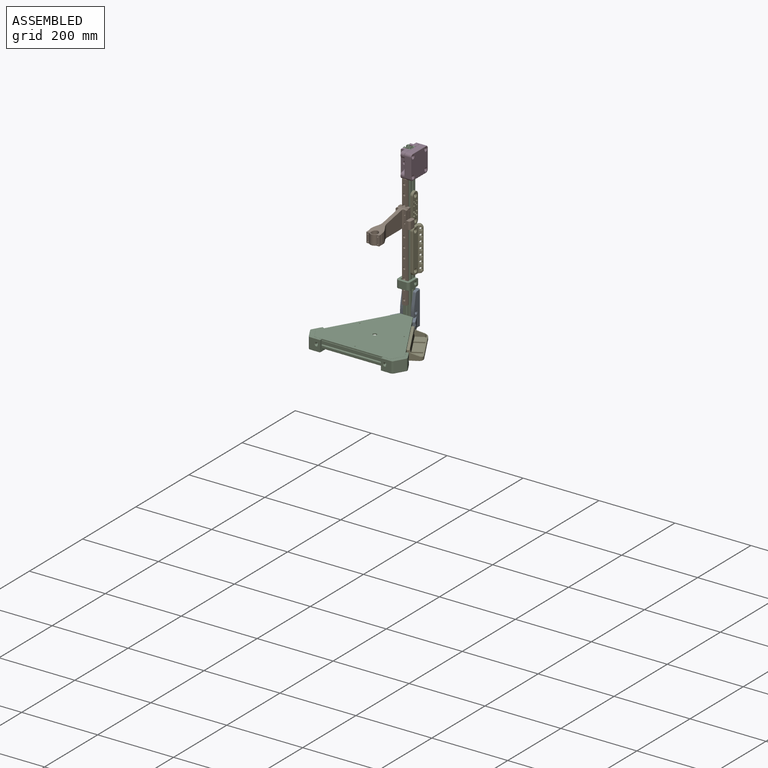
[diagram: assembled view]
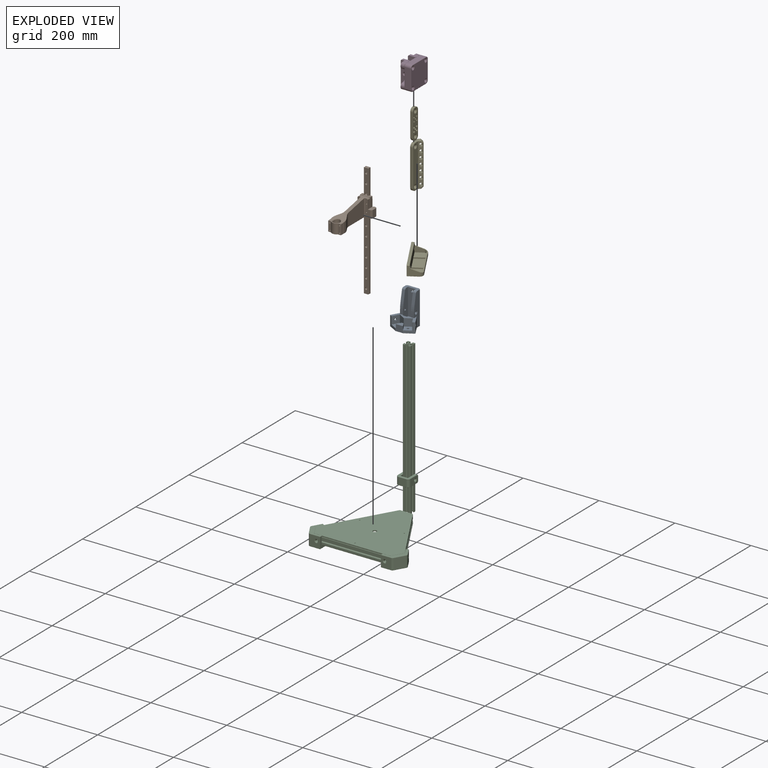
[diagram: exploded view]
GUIDED TOUR — FREECAD ASSEMBLY "HeatSetInsertPress-V2"

This assembly has 5 components, labeled P0..P4 below (a component is one placed body or linked part; the same part can appear more than once), held together by 0 modeled joints plus 7 derived contact edges. A joint is a constraint between two components; its type names the relative motion it leaves free:
  CONTACT — a derived adjacency edge — the two components touch in the source model (clearance under 2% of the assembly's diagonal); it is measured from the geometry, not a modeled constraint.
Axis/direction vectors are unit vectors and 'through' points are millimeter coordinates, both in the assembly's world frame.

MATES
  1. CONTACT "contact_0_1": P0 <-> P1, contact direction (0.000, 0.000, 1.000) through (-7.86, -10.11, 39.85) mm (derived from contact, not a modeled constraint)
  2. CONTACT "contact_0_2": P0 <-> P2, contact direction (0.000, -1.000, 0.000) through (9.89, -9.69, 10.00) mm (derived from contact, not a modeled constraint)
  3. CONTACT "contact_1_2": P1 <-> P2, contact direction (0.000, 0.000, -1.000) through (6.36, -21.40, 79.38) mm (derived from contact, not a modeled constraint)
  4. CONTACT "contact_1_3": P1 <-> P3, contact direction (0.000, 0.000, 1.000) through (7.64, -12.24, 343.00) mm (derived from contact, not a modeled constraint)
  5. CONTACT "contact_1_4": P1 <-> P4, contact direction (0.000, 0.000, -1.000) through (16.94, -11.04, 237.03) mm (derived from contact, not a modeled constraint)
  6. CONTACT "contact_2_3": P2 <-> P3, contact direction (0.000, 0.000, 1.000) through (9.48, -9.87, 410.00) mm (derived from contact, not a modeled constraint)
  7. CONTACT "contact_2_4": P2 <-> P4, contact direction (0.000, 0.000, 1.000) through (6.75, 7.21, 286.31) mm (derived from contact, not a modeled constraint)

ASSEMBLY ORDER
  1. P0 — the base component [order verified]
  2. P2 [order verified]
  3. P4 [order verified]
  4. P1 [order verified]
  5. P3 [order verified]
Order-tag legend:
  [order verified] — this step's position reverses a verified removal order: the component was checked to insert without passing through the ones already placed.

Of the 5 components, 4 carry a construction recipe — the FreeCAD feature program (sketches with constraints, then the solid features that consume them) that regenerates the part from scratch, quoted from this document or from the linked companion document it references; the rest are supplied as boundary geometry only. The tour below walks the components in assembly order: each is shown spotlighted twice — in the assembled view, then in the exploded view, where a leader line traces a displaced component back to its assembled socket (components that stay in place when exploded have no leader line; saturated green if recipe-attached, orange if geometry-only; every other component desaturated gray) — followed by its recipe or geometry summary and the mates that hold it.
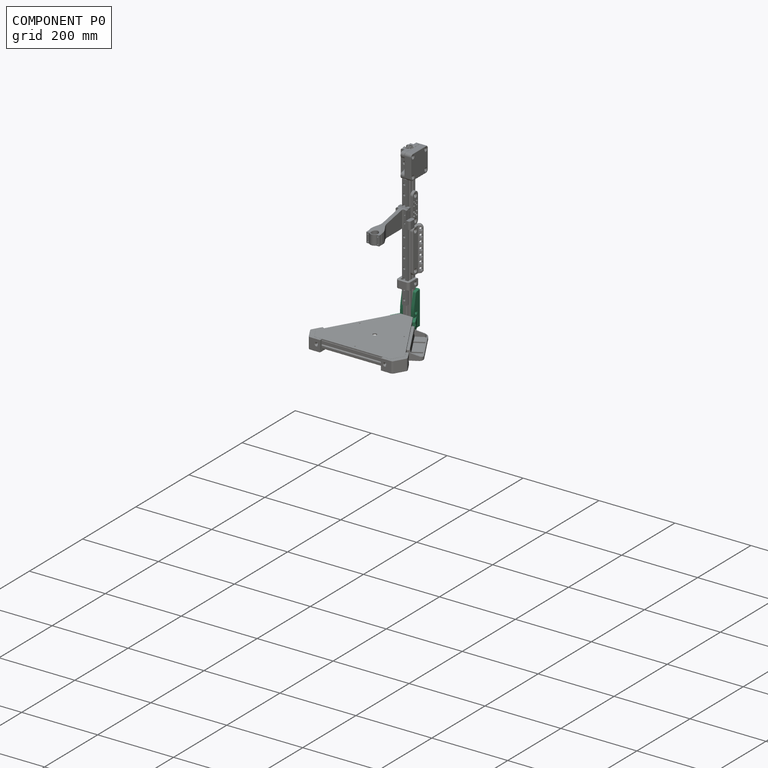
[diagram: component P0 — assembled]
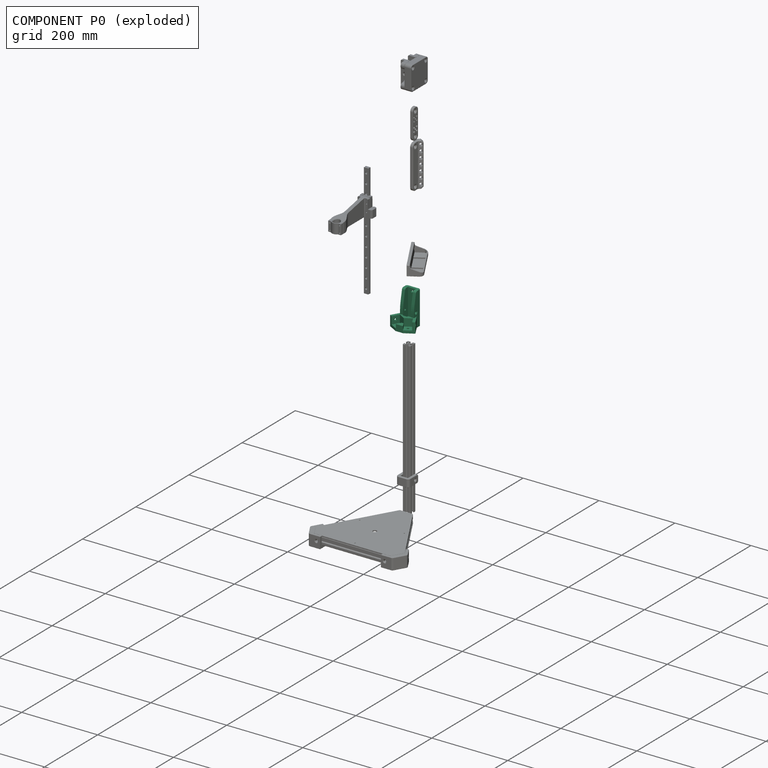
[diagram: component P0 — exploded]
COMPONENT P0 — recipe-attached ("CoinLong", modeled in this document).
Held by: resting contact with P1 (derived edge); resting contact with P2 (derived edge).
Construction recipe (the document's own serialized feature program — sketch geometry with constraints, then the solid features built on it; lengths are millimeters unless a unit is written):

FEATURE [PartDesign::FeatureBase] Clone
  BaseFeature = -> Fillet
  Suppressed = false
FEATURE [PartDesign::Pad] Pad005
  AlongSketchNormal = false
  BaseFeature = -> Clone
  Direction = (-0.866025,-0.5,0)
  Length = 15
  Length2 = 10
  Profile = -> Clone [Face23]
  Refine = true
  SideType = 0
  Suppressed = false
  Type = 0
  Type2 = 0
FEATURE [Sketcher::SketchObject] Sketch010
  ArcFitTolerance = 1e-06
  AttachmentSupport = -> [Pad005]
  ExternalGeometry = -> [Pad005]
  ExternalTypes = [0]
  FullyConstrained = true
  MakeInternals = false
  MapMode = 5
  Placement = pos=(0,0,10) rot=(0,0,1;0rad)
  sketch-geometry (15):
    g0: LineSegment [constr] StartX=-131.12 StartY=-199.625 StartZ=0 EndX=-113.799 EndY=-189.625 EndZ=0
    g1: LineSegment [constr] StartX=-113.799 StartY=-189.625 StartZ=0 EndX=-103.799 EndY=-206.945 EndZ=0
    g2: LineSegment [constr] StartX=-103.799 StartY=-206.945 StartZ=0 EndX=-121.12 EndY=-216.945 EndZ=0
    g3: LineSegment [constr] StartX=-121.12 StartY=-216.945 StartZ=0 EndX=-131.12 EndY=-199.625 EndZ=0
    g4: LineSegment [constr] StartX=-131.12 StartY=-199.625 StartZ=0 EndX=-141.373 EndY=-195.865 EndZ=0
    g5: LineSegment [constr] StartX=-121.12 StartY=-216.945 StartZ=0 EndX=-122.99 EndY=-227.705 EndZ=0
    g6: LineSegment [constr] StartX=-121.12 StartY=-216.945 StartZ=0 EndX=-127.182 EndY=-220.445 EndZ=0
    g7: LineSegment StartX=-141.373 StartY=-195.865 StartZ=0 EndX=-119.722 EndY=-183.365 EndZ=0
    g8: LineSegment StartX=-119.722 StartY=-183.365 StartZ=0 EndX=-115.531 EndY=-190.625 EndZ=0
    g9: LineSegment StartX=-115.531 StartY=-190.625 StartZ=0 EndX=-131.12 EndY=-199.625 EndZ=0
    g10: LineSegment StartX=-131.12 StartY=-199.625 StartZ=0 EndX=-121.12 EndY=-216.945 EndZ=0
    g11: LineSegment StartX=-121.12 StartY=-216.945 StartZ=0 EndX=-105.531 EndY=-207.945 EndZ=0
    g12: LineSegment StartX=-105.531 StartY=-207.945 StartZ=0 EndX=-101.34 EndY=-215.205 EndZ=0
    g13: LineSegment StartX=-101.34 StartY=-215.205 StartZ=0 EndX=-122.99 EndY=-227.705 EndZ=0
    g14: LineSegment StartX=-122.99 StartY=-227.705 StartZ=0 EndX=-141.373 EndY=-195.865 EndZ=0
  constraints (39):
    c: Coincident(g0,g1)
    c: Coincident(g1,g2)
    c: Coincident(g2,g3)
    c: Coincident(g3,g0)
    c: Parallel(g0,g2)
    c: Parallel(g1,g3)
    c: Equal(g0,g1)
    c: Perpendicular(g1,g0)
    c: Distance(g2) = 20
    c: Parallel(g-3,g3)
    c: Coincident(g4,g0)
    c: Coincident(g4,g-5)
    c: Coincident(g5,g2)
    c: Coincident(g5,g-4)
    c: Equal(g5,g4)
    c: Coincident(g6,g2)
    c: PointOnObject(g6,g-3)
    c: Perpendicular(g-3,g6)
    c: Distance(g6) = 7
    c: Coincident(g7,g-5)
    c: Coincident(g8,g7)
    c: PointOnObject(g8,g0)
    c: Coincident(g8,g9)
    c: Coincident(g9,g0)
    c: Coincident(g9,g10)
    c: Coincident(g10,g2)
    c: Coincident(g10,g11)
    c: PointOnObject(g11,g2)
    c: Coincident(g11,g12)
    c: Coincident(g12,g13)
    c: Coincident(g13,g-4)
    c: Coincident(g13,g14)
    c: Coincident(g14,g7)
    c: PointOnObject(g-4,g13)
    c: Equal(g13,g7)
    c: Perpendicular(g13,g12)
    c: Perpendicular(g7,g8)
    c: PointOnObject(g-5,g7)
    c: Distance(g9) = 18
FEATURE [PartDesign::Pad] Pad006
  AlongSketchNormal = false
  BaseFeature = -> Pad005
  Direction = (0,0,1)
  Length = 60
  Length2 = 10
  Profile = -> Sketch010
  ReferenceAxis = -> Sketch010 [N_Axis]
  Refine = true
  SideType = 0
  Suppressed = false
  Type = 0
  Type2 = 0
FEATURE [Sketcher::SketchObject] Sketch011
  ArcFitTolerance = 1e-06
  AttachmentSupport = -> [Pad006]
  ExternalGeometry = -> [Pad006]
  ExternalTypes = [0]
  FullyConstrained = true
  MakeInternals = false
  MapMode = 5
  Placement = pos=(0,0,10) rot=(0,0,1;0rad)
  sketch-geometry (4):
    g0: LineSegment StartX=-131.12 StartY=-199.625 StartZ=0 EndX=-113.799 EndY=-189.625 EndZ=0
    g1: LineSegment StartX=-113.799 StartY=-189.625 StartZ=0 EndX=-103.799 EndY=-206.945 EndZ=0
    g2: LineSegment StartX=-103.799 StartY=-206.945 StartZ=0 EndX=-121.12 EndY=-216.945 EndZ=0
    g3: LineSegment StartX=-121.12 StartY=-216.945 StartZ=0 EndX=-131.12 EndY=-199.625 EndZ=0
  constraints (11):
    c: Coincident(g0,g1)
    c: Coincident(g1,g2)
    c: Coincident(g2,g3)
    c: Coincident(g3,g0)
    c: Parallel(g0,g2)
    c: Parallel(g1,g3)
    c: Perpendicular(g1,g0)
    c: Coincident(g0,g-3)
    c: PointOnObject(g1,g-4)
    c: PointOnObject(g0,g-3)
    c: Equal(g1,g0)
FEATURE [PartDesign::Pocket] Pocket003
  AlongSketchNormal = false
  BaseFeature = -> Pad006
  Direction = (0,0,-1)
  Length = 10
  Length2 = 10
  Profile = -> Sketch011
  ReferenceAxis = -> Sketch011 [N_Axis]
  Refine = true
  SideType = 0
  Suppressed = false
  Type = 0
  Type2 = 0
FEATURE [Sketcher::SketchObject] Sketch012
  ArcFitTolerance = 1e-06
  AttachmentSupport = -> [Pocket003]
  ExternalGeometry = -> [Pocket003]
  ExternalTypes = [0]
  FullyConstrained = true
  MakeInternals = false
  MapMode = 5
  sketch-geometry (5):
    g0: LineSegment StartX=-131.529 StartY=-199.515 StartZ=0 EndX=-121.229 EndY=-217.355 EndZ=0
    g1: LineSegment StartX=-121.229 StartY=-217.355 StartZ=0 EndX=-103.389 EndY=-207.055 EndZ=0
    g2: LineSegment StartX=-103.389 StartY=-207.055 StartZ=0 EndX=-113.689 EndY=-189.215 EndZ=0
    g3: LineSegment StartX=-113.689 StartY=-189.215 StartZ=0 EndX=-131.529 EndY=-199.515 EndZ=0
    g4: GeomPoint [constr] X=-117.459 Y=-203.285 Z=0
  constraints (12):
    c: Coincident(g0,g1)
    c: Coincident(g1,g2)
    c: Coincident(g2,g3)
    c: Coincident(g3,g0)
    c: Parallel(g1,g3)
    c: Parallel(g0,g2)
    c: Symmetric(g1,g0,g4)
    c: Perpendicular(g0,g1)
    c: Equal(g2,g3)
    c: Symmetric(g-4,g-3,g4)
    c: Parallel(g2,g-3)
    c: Distance(g3) = 20.6
FEATURE [PartDesign::Pocket] Pocket004
  AlongSketchNormal = false
  BaseFeature = -> Pocket003
  Direction = (0,0,-1)
  Length = 77
  Length2 = 10
  Profile = -> Sketch012
  ReferenceAxis = -> Sketch012 [N_Axis]
  Refine = true
  Reversed = true
  SideType = 0
  Suppressed = false
  Type = 0
  Type2 = 0
FEATURE [Sketcher::SketchObject] Sketch013
  ArcFitTolerance = 1e-06
  AttachmentSupport = -> [Pocket004]
  ExternalGeometry = -> [Pocket004]
  ExternalTypes = [0]
  FullyConstrained = true
  MakeInternals = false
  MapMode = 5
  Placement = pos=(-185.04,-106.833,0) rot=(0.377964,0.654654,0.654654;2.41886rad)
  sketch-geometry (2):
    g0: Circle CenterX=-117.321 CenterY=62 CenterZ=0 NormalX=0 NormalY=0 NormalZ=1 AngleXU=0 Radius=2.7
    g1: LineSegment [constr] StartX=-117.321 StartY=62 StartZ=0 EndX=-117.321 EndY=70 EndZ=0
  constraints (5):
    c: Diameter(g0) = 5.4
    c: Coincident(g1,g0)
    c: Vertical(g1)
    c: Symmetric(g-3,g-3,g1)
    c: DistanceY(g1,g1) = 8
FEATURE [PartDesign::Pocket] Pocket005
  AlongSketchNormal = false
  BaseFeature = -> Pocket004
  Direction = (-0.866025,-0.5,-2e-16)
  Length = 14
  Length2 = 10
  Profile = -> Sketch013
  ReferenceAxis = -> Sketch013 [N_Axis]
  Refine = true
  SideType = 0
  Suppressed = false
  Type = 0
  Type2 = 0
FEATURE [Sketcher::SketchObject] Sketch014
  ArcFitTolerance = 1e-06
  AttachmentSupport = -> [Pocket005]
  ExternalGeometry = -> [Pocket005]
  ExternalTypes = [0]
  FullyConstrained = true
  MakeInternals = false
  MapMode = 5
  Placement = pos=(53.5103,-92.6825,0) rot=(0.935113,0.250563,0.250563;1.63783rad)
  sketch-geometry (2):
    g0: Circle CenterX=-203.365 CenterY=20 CenterZ=0 NormalX=0 NormalY=0 NormalZ=1 AngleXU=0 Radius=2.7
    g1: LineSegment [constr] StartX=-203.365 StartY=-3.6e-15 StartZ=0 EndX=-203.365 EndY=20 EndZ=0
  constraints (5):
    c: Diameter(g0) = 5.4
    c: Coincident(g1,g0)
    c: Vertical(g1)
    c: Symmetric(g-3,g-3,g1)
    c: DistanceY(g1,g1) = 20
FEATURE [PartDesign::Pocket] Pocket006
  AlongSketchNormal = false
  BaseFeature = -> Pocket005
  Direction = (-0.5,0.866025,0)
  Length = 104
  Length2 = 10
  Profile = -> Sketch014
  ReferenceAxis = -> Sketch014 [N_Axis]
  Refine = true
  SideType = 2
  Suppressed = false
  Type = 0
  Type2 = 0
FEATURE [PartDesign::Chamfer] Chamfer003
  Angle = 45
  Base = -> Pocket006 [Edge83,Edge97]
  BaseFeature = -> Pocket006
  ChamferType = 1
  FlipDirection = false
  Refine = true
  Size = 40
  Size2 = 8
  SupportTransform = false
  Suppressed = false
  UseAllEdges = false
FEATURE [PartDesign::Fillet] Fillet003
  Base = -> Chamfer003 [Edge30,Edge13]
  BaseFeature = -> Chamfer003
  Radius = 5
  Refine = true
  SupportTransform = false
  Suppressed = false
  UseAllEdges = false
FEATURE [PartDesign::Fillet] Fillet004
  Base = -> Fillet003 [Edge12,Edge87]
  BaseFeature = -> Fillet003
  Radius = 100
  Refine = true
  SupportTransform = false
  Suppressed = false
  UseAllEdges = false
FEATURE [PartDesign::Chamfer] Chamfer004
  Angle = 45
  Base = -> Fillet004 [Edge7,Edge42]
  BaseFeature = -> Fillet004
  ChamferType = 0
  FlipDirection = false
  Refine = true
  Size = 3
  Size2 = 1
  SupportTransform = false
  Suppressed = false
  UseAllEdges = false
FEATURE [PartDesign::Chamfer] Chamfer005
  Angle = 45
  Base = -> Chamfer004 [Edge10,Edge69,Edge65]
  BaseFeature = -> Chamfer004
  ChamferType = 0
  FlipDirection = false
  Refine = true
  Size = 2
  Size2 = 1
  SupportTransform = false
  Suppressed = false
  UseAllEdges = false
FEATURE [PartDesign::Chamfer] Chamfer006
  Angle = 45
  Base = -> Chamfer005 [Face6]
  BaseFeature = -> Chamfer005
  ChamferType = 0
  FlipDirection = false
  Refine = true
  Size = 0.4
  Size2 = 1
  SupportTransform = false
  Suppressed = false
  UseAllEdges = false
FEATURE [PartDesign::Body] Body004  label="CoinLong"
  AllowCompound = true
  BaseFeature = -> Fillet
  Group = -> [Clone,Pad005,Sketch010,Pad006,Sketch011,Pocket003,Sketch012,Pocket004,Sketch013,Pocket005,Sketch014,Pocket006,Chamfer003,Fillet003,Fillet004,Chamfer004,Chamfer005,Chamfer006]
  Origin = -> Origin004
  Placement = pos=(117.303,-202.825,0) rot=(0,0,1;4.18879rad)
  Tip = -> Chamfer006
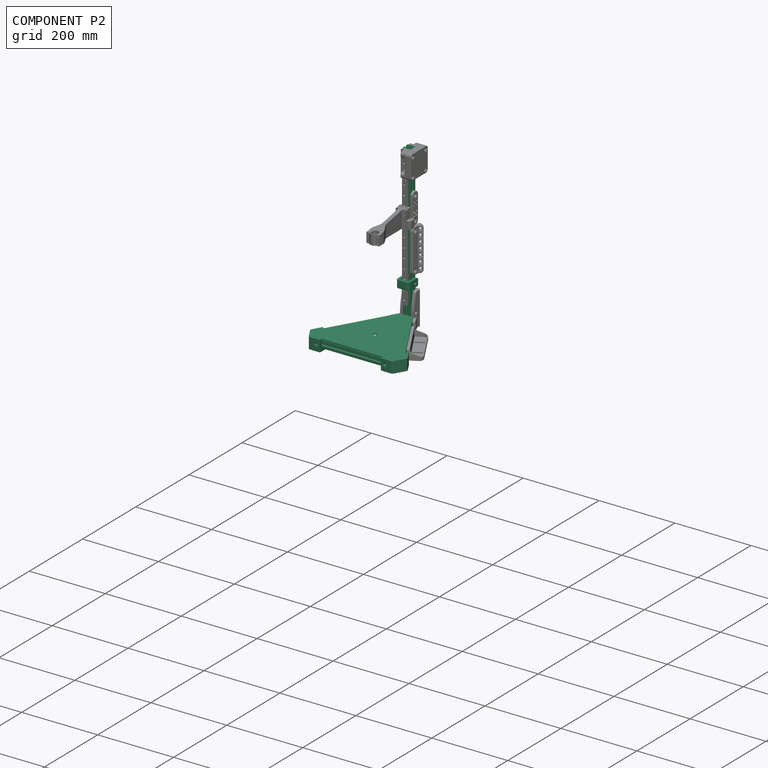
[diagram: component P2 — assembled]
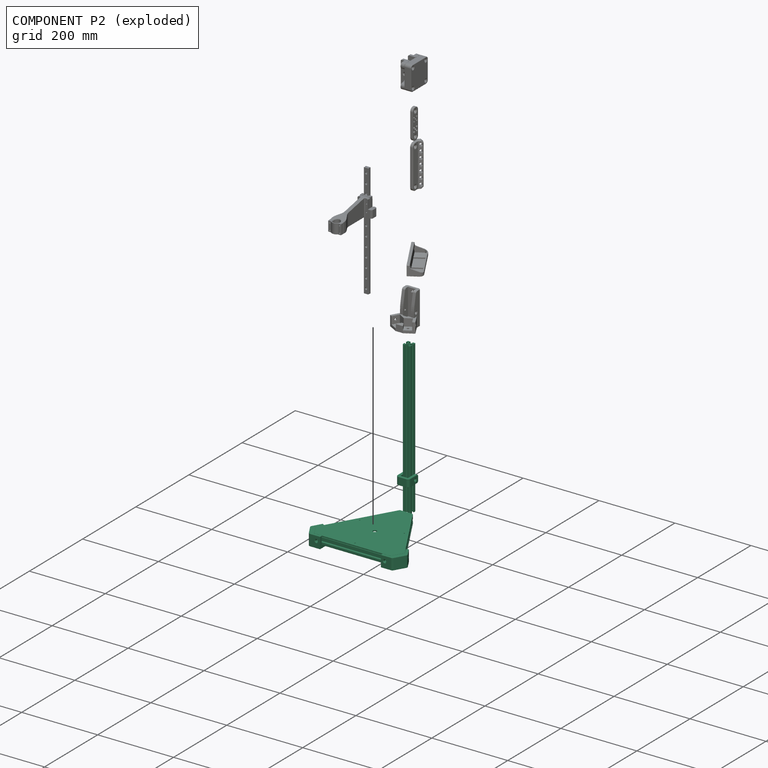
[diagram: component P2 — exploded]
COMPONENT P2 — recipe-attached ("Structure", modeled in this document).
Held by: resting contact with P0 (derived edge); resting contact with P1 (derived edge); resting contact with P3 (derived edge); resting contact with P4 (derived edge).
Construction recipe (the document's own serialized feature program — sketch geometry with constraints, then the solid features built on it; lengths are millimeters unless a unit is written):

FEATURE [Sketcher::SketchObject] Sketch
  ArcFitTolerance = 1e-06
  AttachmentSupport = -> [XZ_Plane]
  ExternalTypes = [0]
  FullyConstrained = true
  MakeInternals = false
  MapMode = 5
  Placement = pos=(0,0,0) rot=(1,0,0;1.5708rad)
  sketch-geometry (5):
    g0: LineSegment StartX=-10 StartY=-10 StartZ=0 EndX=-10 EndY=10 EndZ=0
    g1: LineSegment StartX=-10 StartY=10 StartZ=0 EndX=10 EndY=10 EndZ=0
    g2: LineSegment StartX=10 StartY=10 StartZ=0 EndX=10 EndY=-10 EndZ=0
    g3: LineSegment StartX=10 StartY=-10 StartZ=0 EndX=-10 EndY=-10 EndZ=0
    g4: GeomPoint [constr] X=0 Y=-2e-16 Z=0
  constraints (12):
    c: Coincident(g0,g1)
    c: Coincident(g1,g2)
    c: Coincident(g2,g3)
    c: Coincident(g3,g0)
    c: Horizontal(g1)
    c: Horizontal(g3)
    c: Vertical(g0)
    c: Vertical(g2)
    c: Symmetric(g1,g0,g4)
    c: Coincident(g4,g-1)
    c: Equal(g2,g1)
    c: DistanceY(g2,g2) = 20
FEATURE [PartDesign::Pad] Pad
  AlongSketchNormal = false
  Direction = (0,-1,2e-16)
  Length = 200
  Length2 = 10
  Placement = pos=(0,0,0) rot=(1,0,0;1.5708rad)
  Profile = -> Sketch
  ReferenceAxis = -> Sketch [N_Axis]
  Refine = true
  SideType = 0
  Suppressed = false
  Type = 0
  Type2 = 0
FEATURE [Sketcher::SketchObject] Sketch001
  ArcFitTolerance = 1e-06
  AttachmentSupport = -> [XY_Plane001]
  ExternalTypes = [0]
  FullyConstrained = true
  MakeInternals = false
  MapMode = 5
  sketch-geometry (5):
    g0: LineSegment StartX=-10 StartY=-10 StartZ=0 EndX=-10 EndY=10 EndZ=0
    g1: LineSegment StartX=-10 StartY=10 StartZ=0 EndX=10 EndY=10 EndZ=0
    g2: LineSegment StartX=10 StartY=10 StartZ=0 EndX=10 EndY=-10 EndZ=0
    g3: LineSegment StartX=10 StartY=-10 StartZ=0 EndX=-10 EndY=-10 EndZ=0
    g4: GeomPoint [constr] X=0 Y=-1e-16 Z=0
  constraints (12):
    c: Coincident(g0,g1)
    c: Coincident(g1,g2)
    c: Coincident(g2,g3)
    c: Coincident(g3,g0)
    c: Horizontal(g1)
    c: Horizontal(g3)
    c: Vertical(g0)
    c: Vertical(g2)
    c: Symmetric(g1,g0,g4)
    c: Coincident(g4,g-1)
    c: Equal(g2,g1)
    c: DistanceX(g1,g1) = 20
FEATURE [PartDesign::Pad] Pad001
  AlongSketchNormal = false
  Direction = (0,0,1)
  Length = 400
  Length2 = 10
  Profile = -> Sketch001
  ReferenceAxis = -> Sketch001 [N_Axis]
  Refine = true
  SideType = 0
  Suppressed = false
  Type = 0
  Type2 = 0
FEATURE [PartDesign::ShapeBinder] ShapeBinder
  Support = -> [Sketch002]
  TraceSupport = false
FEATURE [Sketcher::SketchObject] Sketch003
  ArcFitTolerance = 1e-06
  AttachmentSupport = -> [ShapeBinder]
  ExternalGeometry = -> [ShapeBinder]
  ExternalTypes = [0]
  FullyConstrained = true
  MakeInternals = false
  MapMode = 5
  sketch-geometry (9):
    g0: LineSegment StartX=-100 StartY=-193.205 StartZ=0 EndX=-117.321 EndY=-183.205 EndZ=0
    g1: LineSegment StartX=-117.321 StartY=-183.205 StartZ=0 EndX=-107.321 EndY=-165.885 EndZ=0
    g2: LineSegment StartX=-107.321 StartY=-165.885 StartZ=0 EndX=-113.383 EndY=-162.385 EndZ=0
    g3: LineSegment StartX=-113.383 StartY=-162.385 StartZ=0 EndX=-128.383 EndY=-188.365 EndZ=0
    g4: LineSegment StartX=-128.383 StartY=-188.365 StartZ=0 EndX=-110 EndY=-220.205 EndZ=0
    g5: LineSegment StartX=-110 StartY=-220.205 StartZ=0 EndX=-80 EndY=-220.205 EndZ=0
    g6: LineSegment StartX=-80 StartY=-220.205 StartZ=0 EndX=-80 EndY=-213.205 EndZ=0
    g7: LineSegment StartX=-80 StartY=-213.205 StartZ=0 EndX=-100 EndY=-213.205 EndZ=0
    g8: LineSegment StartX=-100 StartY=-213.205 StartZ=0 EndX=-100 EndY=-193.205 EndZ=0
  constraints (26):
    c: Coincident(g0,g-5)
    c: Coincident(g0,g1)
    c: Coincident(g1,g2)
    c: Coincident(g2,g3)
    c: Coincident(g3,g4)
    c: Coincident(g4,g5)
    c: Horizontal(g5)
    c: Coincident(g5,g6)
    c: Vertical(g6)
    c: Coincident(g6,g7)
    c: Horizontal(g7)
    c: Coincident(g7,g8)
    c: Coincident(g8,g0)
    c: Vertical(g8)
    c: PointOnObject(g-5,g0)
    c: Perpendicular(g1,g0)
    c: Equal(g1,g7)
    c: Equal(g6,g2)
    c: Perpendicular(g2,g1)
    c: Equal(g5,g3)
    c: Perpendicular(g2,g3)
    c: DistanceY(g6,g6) = 7
    c: Equal(g8,g0)
    c: DistanceY(g8,g8) = 20
    c: DistanceX(g7,g7) = 20
    c: DistanceX(g5,g5) = 30
FEATURE [PartDesign::Pad] Pad002
  AlongSketchNormal = false
  Direction = (0,0,1)
  Length = 20
  Length2 = 10
  Profile = -> Sketch003
  ReferenceAxis = -> Sketch003 [N_Axis]
  Refine = true
  SideType = 2
  Suppressed = false
  Type = 0
  Type2 = 0
FEATURE [Sketcher::SketchObject] Sketch004
  ArcFitTolerance = 1e-06
  AttachmentSupport = -> [Pad002]
  ExternalGeometry = -> [Pad002,ShapeBinder]
  ExternalTypes = [0]
  FullyConstrained = true
  MakeInternals = false
  MapMode = 5
  Placement = pos=(0,0,-10) rot=(1,0,0;3.14159rad)
  sketch-geometry (3):
    g0: LineSegment StartX=-113.383 StartY=162.385 StartZ=0 EndX=-90 EndY=175.885 EndZ=0
    g1: LineSegment StartX=-80 StartY=220.205 StartZ=0 EndX=-80 EndY=193.205 EndZ=0
    g2: LineSegment StartX=-90 StartY=175.885 StartZ=0 EndX=-80 EndY=193.205 EndZ=0
  constraints (8):
    c: Coincident(g0,g-4)
    c: Coincident(g1,g-3)
    c: Vertical(g1)
    c: Equal(g0,g1)
    c: Perpendicular(g-4,g0)
    c: Coincident(g2,g0)
    c: Coincident(g2,g1)
    c: PointOnObject(g1,g-6)
FEATURE [PartDesign::Pad] Pad003
  AlongSketchNormal = false
  BaseFeature = -> Pad002
  Direction = (0,0,-1)
  Length = 7
  Length2 = 10
  Profile = -> Sketch004
  ReferenceAxis = -> Sketch004 [N_Axis]
  Refine = true
  SideType = 0
  Suppressed = false
  Type = 0
  Type2 = 0
FEATURE [Sketcher::SketchObject] Sketch005
  ArcFitTolerance = 1e-06
  AttachmentSupport = -> [Pad003]
  ExternalGeometry = -> [Pad003]
  ExternalTypes = [0]
  FullyConstrained = true
  MakeInternals = false
  MapMode = 5
  Placement = pos=(0,0,-10) rot=(0,0,1;0rad)
  sketch-geometry (5):
    g0: LineSegment [constr] StartX=-90 StartY=-175.885 StartZ=0 EndX=-100 EndY=-193.205 EndZ=0
    g1: LineSegment [constr] StartX=-100 StartY=-193.205 StartZ=0 EndX=-80 EndY=-193.205 EndZ=0
    g2: LineSegment StartX=-90 StartY=-175.885 StartZ=0 EndX=-97.5 EndY=-188.875 EndZ=0
    g3: LineSegment StartX=-80 StartY=-193.205 StartZ=0 EndX=-95 EndY=-193.205 EndZ=0
    g4: LineSegment StartX=-95 StartY=-193.205 StartZ=0 EndX=-97.5 EndY=-188.875 EndZ=0
  constraints (12):
    c: Coincident(g0,g-3)
    c: Coincident(g0,g-5)
    c: Coincident(g1,g-5)
    c: Coincident(g1,g-3)
    c: Coincident(g2,g-3)
    c: PointOnObject(g2,g0)
    c: Coincident(g3,g-3)
    c: PointOnObject(g3,g1)
    c: Coincident(g4,g3)
    c: Coincident(g4,g2)
    c: Equal(g2,g3)
    c: Distance(g2) = 15
FEATURE [PartDesign::Pad] Pad004
  AlongSketchNormal = false
  BaseFeature = -> Pad003
  Direction = (0,0,1)
  Length = 10
  Length2 = 10
  Profile = -> Sketch005
  ReferenceAxis = -> Sketch005 [N_Axis]
  Refine = true
  SideType = 0
  Suppressed = false
  Type = 0
  Type2 = 0
FEATURE [Sketcher::SketchObject] Sketch006
  ArcFitTolerance = 1e-06
  AttachmentSupport = -> [Pad004]
  ExternalGeometry = -> [Pad004]
  ExternalTypes = [0]
  FullyConstrained = true
  MakeInternals = false
  MapMode = 5
  Placement = pos=(0,0,-10) rot=(0,0,1;0rad)
  sketch-geometry (6):
    g0: Circle CenterX=-103.66 CenterY=-179.545 CenterZ=0 NormalX=0 NormalY=0 NormalZ=1 AngleXU=0 Radius=2.7
    g1: Circle CenterX=-90 CenterY=-203.205 CenterZ=0 NormalX=0 NormalY=0 NormalZ=1 AngleXU=0 Radius=2.7
    g2: LineSegment [constr] StartX=-119.191 StartY=-204.285 StartZ=0 EndX=-85 EndY=-184.545 EndZ=0
    g3: LineSegment [constr] StartX=-100 StartY=-213.205 StartZ=0 EndX=-80 EndY=-193.205 EndZ=0
    g4: GeomPoint [constr] X=-85 Y=-184.545 Z=0
    g5: GeomPoint [constr] X=-119.191 Y=-204.285 Z=0
  constraints (10):
    c: Equal(g1,g0)
    c: Diameter(g0) = 5.4
    c: Symmetric(g-3,g-3,g2)
    c: Symmetric(g-4,g-4,g2)
    c: Symmetric(g1,g0,g2)
    c: Coincident(g3,g-5)
    c: Coincident(g3,g-3)
    c: Symmetric(g3,g3,g1)
    c: Coincident(g4,g2)
    c: Coincident(g5,g2)
FEATURE [PartDesign::Pocket] Pocket
  AlongSketchNormal = false
  BaseFeature = -> Pad004
  Direction = (0,0,-1)
  Length = 10
  Length2 = 10
  Profile = -> Sketch006
  ReferenceAxis = -> Sketch006 [N_Axis]
  Refine = true
  SideType = 0
  Suppressed = false
  Type = 0
  Type2 = 0
FEATURE [Sketcher::SketchObject] Sketch007
  ArcFitTolerance = 1e-06
  AttachmentSupport = -> [Pocket]
  ExternalGeometry = -> [Pocket]
  ExternalTypes = [0]
  FullyConstrained = true
  MakeInternals = false
  MapMode = 5
  Placement = pos=(-8.66025,5,0) rot=(0.774597,0.447214,0.447214;1.82348rad)
  sketch-geometry (1):
    g0: Circle CenterX=-207.321 CenterY=8.2e-15 CenterZ=0 NormalX=0 NormalY=0 NormalZ=1 AngleXU=0 Radius=2.7
  constraints (2):
    c: Diameter(g0) = 5.4
    c: Symmetric(g-4,g-3,g0)
FEATURE [Sketcher::SketchObject] Sketch008
  ArcFitTolerance = 1e-06
  AttachmentSupport = -> [Pocket]
  ExternalGeometry = -> [Pocket]
  ExternalTypes = [0]
  FullyConstrained = true
  MakeInternals = false
  MapMode = 5
  Placement = pos=(0,-213.205,0) rot=(0,0.707107,0.707107;3.14159rad)
  sketch-geometry (1):
    g0: Circle CenterX=90 CenterY=-1.6e-15 CenterZ=0 NormalX=0 NormalY=0 NormalZ=1 AngleXU=0 Radius=2.7
  constraints (2):
    c: Symmetric(g-3,g-4,g0)
    c: Diameter(g0) = 5.4
FEATURE [PartDesign::Pocket] Pocket001
  AlongSketchNormal = false
  BaseFeature = -> Pocket
  Direction = (-0.866025,0.5,1e-16)
  Length = 10
  Length2 = 10
  Profile = -> Sketch007
  ReferenceAxis = -> Sketch007 [N_Axis]
  Refine = true
  SideType = 0
  Suppressed = false
  Type = 0
  Type2 = 0
FEATURE [PartDesign::Pocket] Pocket002
  AlongSketchNormal = false
  BaseFeature = -> Pocket001
  Direction = (0,-1,2e-16)
  Length = 10
  Length2 = 10
  Profile = -> Sketch008
  ReferenceAxis = -> Sketch008 [N_Axis]
  Refine = true
  SideType = 0
  Suppressed = false
  Type = 0
  Type2 = 0
FEATURE [PartDesign::Chamfer] Chamfer
  Angle = 45
  Base = -> Pocket002 [Edge46,Edge32,Edge44,Edge52]
  BaseFeature = -> Pocket002
  ChamferType = 0
  FlipDirection = false
  Refine = true
  Size = 2
  Size2 = 1
  SupportTransform = false
  Suppressed = false
  UseAllEdges = false
FEATURE [PartDesign::Fillet] Fillet
  Base = -> Chamfer [Edge45,Edge43,Edge42,Edge47,Edge49,Edge9]
  BaseFeature = -> Chamfer
  Radius = 1
  Refine = true
  SupportTransform = false
  Suppressed = false
  UseAllEdges = false
FEATURE [PartDesign::Fillet] Fillet001
  Base = -> Fillet [Edge28]
  BaseFeature = -> Fillet
  Radius = 4
  Refine = true
  SupportTransform = false
  Suppressed = false
  UseAllEdges = false
FEATURE [PartDesign::Fillet] Fillet002
  Base = -> Fillet001 [Edge84,Edge78]
  BaseFeature = -> Fillet001
  Radius = 6
  Refine = true
  SupportTransform = false
  Suppressed = false
  UseAllEdges = false
FEATURE [PartDesign::Chamfer] Chamfer001
  Angle = 45
  Base = -> Fillet002 [Face16]
  BaseFeature = -> Fillet002
  ChamferType = 0
  FlipDirection = false
  Refine = true
  Size = 0.4
  Size2 = 1
  SupportTransform = false
  Suppressed = false
  UseAllEdges = false
FEATURE [PartDesign::Chamfer] Chamfer002
  Angle = 45
  Base = -> Chamfer001 [Edge82,Edge83,Edge50,Edge68]
  BaseFeature = -> Chamfer001
  ChamferType = 0
  FlipDirection = false
  Refine = true
  Size = 0.4
  Size2 = 1
  SupportTransform = false
  Suppressed = false
  UseAllEdges = false
FEATURE [Sketcher::SketchObject] Sketch029
  ArcFitTolerance = 1e-06
  AttachmentSupport = -> [XZ_Plane]
  ExternalGeometry = -> [Pad]
  ExternalTypes = [0]
  FullyConstrained = true
  MakeInternals = false
  MapMode = 5
  Placement = pos=(0,0,0) rot=(1,0,0;1.5708rad)
  sketch-geometry (10):
    g0: LineSegment StartX=-10 StartY=-3.1 StartZ=0 EndX=-10 EndY=3.1 EndZ=0
    g1: LineSegment StartX=-10 StartY=3.1 StartZ=0 EndX=-8.2 EndY=3.1 EndZ=0
    g2: LineSegment StartX=-8.2 StartY=3.1 StartZ=0 EndX=-8.2 EndY=5.5 EndZ=0
    g3: LineSegment StartX=-8.2 StartY=5.5 StartZ=0 EndX=-6.3 EndY=5.5 EndZ=0
    g4: LineSegment StartX=-6.3 StartY=5.5 StartZ=0 EndX=-3.9 EndY=3.1 EndZ=0
    g5: LineSegment StartX=-3.9 StartY=3.1 StartZ=0 EndX=-3.9 EndY=-3.1 EndZ=0
    g6: LineSegment StartX=-3.9 StartY=-3.1 StartZ=0 EndX=-6.3 EndY=-5.5 EndZ=0
    g7: LineSegment StartX=-6.3 StartY=-5.5 StartZ=0 EndX=-8.2 EndY=-5.5 EndZ=0
    g8: LineSegment StartX=-8.2 StartY=-5.5 StartZ=0 EndX=-8.2 EndY=-3.1 EndZ=0
    g9: LineSegment StartX=-8.2 StartY=-3.1 StartZ=0 EndX=-10 EndY=-3.1 EndZ=0
  constraints (27):
    c: PointOnObject(g0,g-3)
    c: Coincident(g0,g1)
    c: Horizontal(g1)
    c: Coincident(g1,g2)
    c: Coincident(g2,g3)
    c: Horizontal(g3)
    c: Coincident(g3,g4)
    c: Coincident(g4,g5)
    c: Coincident(g5,g6)
    c: Coincident(g6,g7)
    c: Horizontal(g7)
    c: Coincident(g7,g8)
    c: Vertical(g8)
    c: Coincident(g8,g9)
    c: Coincident(g9,g0)
    c: Symmetric(g0,g0,g-1)
    c: Symmetric(g2,g7,g-1)
    c: Equal(g3,g7)
    c: Symmetric(g4,g5,g-1)
    c: Vertical(g2)
    c: Horizontal(g9)
    c: DistanceY(g0,g0) = 6.2
    c: DistanceY(g7,g2) = 11
    c: DistanceX(g1,g1) = 1.8
    c: Angle(g4,g5) = 2.35619
    c: Horizontal(g4,g1)
    c: DistanceX(g0,g4) = 6.1
FEATURE [PartDesign::Pocket] Pocket013
  AlongSketchNormal = false
  BaseFeature = -> Pad
  Direction = (0,1,-2e-16)
  Length = 200
  Length2 = 10
  Placement = pos=(0,0,0) rot=(1,0,0;1.5708rad)
  Profile = -> Sketch029
  ReferenceAxis = -> Sketch029 [N_Axis]
  Refine = true
  Reversed = true
  SideType = 0
  Suppressed = false
  Type = 0
  Type2 = 0
FEATURE [PartDesign::PolarPattern] PolarPattern
  Angle = 360
  Axis = -> Sketch029 [N_Axis]
  BaseFeature = -> Pocket013
  Mode = 0
  Occurrences = 4
  Offset = 120
  Originals = -> [Pocket013]
  Placement = pos=(0,0,0) rot=(1,0,0;1.5708rad)
  Refine = true
  SpacingPattern = [0]
  Spacings = [-1,-1,-1]
  Suppressed = false
  TransformMode = 0
FEATURE [Sketcher::SketchObject] Sketch030
  ArcFitTolerance = 1e-06
  AttachmentSupport = -> [XZ_Plane]
  ExternalTypes = [0]
  FullyConstrained = true
  MakeInternals = false
  MapMode = 5
  Placement = pos=(0,0,0) rot=(1,0,0;1.5708rad)
  sketch-geometry (1):
    g0: Circle CenterX=0 CenterY=0 CenterZ=0 NormalX=0 NormalY=0 NormalZ=1 AngleXU=0 Radius=2.5
  constraints (2):
    c: Coincident(g0,g-1)
    c: Diameter(g0) = 5
FEATURE [PartDesign::Pocket] Pocket014
  AlongSketchNormal = false
  BaseFeature = -> PolarPattern
  Direction = (0,1,-2e-16)
  Length = 200
  Length2 = 10
  Placement = pos=(0,0,0) rot=(1,0,0;1.5708rad)
  Profile = -> Sketch030
  ReferenceAxis = -> Sketch030 [N_Axis]
  Refine = true
  Reversed = true
  SideType = 0
  Suppressed = false
  Type = 0
  Type2 = 0
FEATURE [PartDesign::Fillet] Fillet013
  Base = -> Pocket014 [Edge115,Edge133,Edge95,Edge4]
  BaseFeature = -> Pocket014
  Placement = pos=(0,0,0) rot=(1,0,0;1.5708rad)
  Radius = 1.5
  Refine = true
  SupportTransform = false
  Suppressed = false
  UseAllEdges = false
FEATURE [PartDesign::Body] Body  label="Profile 2020-200mm"
  AllowCompound = true
  Group = -> [Sketch,Pad,Sketch029,Pocket013,PolarPattern,Sketch030,Pocket014,Fillet013]
  Origin = -> Origin
  Placement = pos=(100,-203.205,-4.44e-14) rot=(0,0,1;4.71239rad)
  Tip = -> Fillet013
FEATURE [Sketcher::SketchObject] Sketch031
  ArcFitTolerance = 1e-06
  AttachmentSupport = -> [XY_Plane001]
  ExternalGeometry = -> [Pad001]
  ExternalTypes = [0]
  FullyConstrained = true
  MakeInternals = false
  MapMode = 5
  sketch-geometry (10):
    g0: LineSegment StartX=-10 StartY=-3.1 StartZ=0 EndX=-10 EndY=3.1 EndZ=0
    g1: LineSegment StartX=-10 StartY=3.1 StartZ=0 EndX=-8.2 EndY=3.1 EndZ=0
    g2: LineSegment StartX=-8.2 StartY=3.1 StartZ=0 EndX=-8.2 EndY=5.5 EndZ=0
    g3: LineSegment StartX=-8.2 StartY=5.5 StartZ=0 EndX=-6.3 EndY=5.5 EndZ=0
    g4: LineSegment StartX=-6.3 StartY=5.5 StartZ=0 EndX=-3.9 EndY=3.1 EndZ=0
    g5: LineSegment StartX=-3.9 StartY=3.1 StartZ=0 EndX=-3.9 EndY=-3.1 EndZ=0
    g6: LineSegment StartX=-3.9 StartY=-3.1 StartZ=0 EndX=-6.3 EndY=-5.5 EndZ=0
    g7: LineSegment StartX=-6.3 StartY=-5.5 StartZ=0 EndX=-8.2 EndY=-5.5 EndZ=0
    g8: LineSegment StartX=-8.2 StartY=-5.5 StartZ=0 EndX=-8.2 EndY=-3.1 EndZ=0
    g9: LineSegment StartX=-8.2 StartY=-3.1 StartZ=0 EndX=-10 EndY=-3.1 EndZ=0
  constraints (28):
    c: PointOnObject(g0,g-3)
    c: Coincident(g0,g1)
    c: Coincident(g1,g2)
    c: Vertical(g2)
    c: Coincident(g2,g3)
    c: Horizontal(g3)
    c: Coincident(g3,g4)
    c: Coincident(g4,g5)
    c: Coincident(g5,g6)
    c: Coincident(g6,g7)
    c: Horizontal(g7)
    c: Coincident(g7,g8)
    c: Vertical(g8)
    c: Coincident(g8,g9)
    c: Coincident(g9,g0)
    c: Horizontal(g9)
    c: Horizontal(g1)
    c: Symmetric(g0,g0,g-1)
    c: Equal(g1,g9)
    c: Equal(g7,g3)
    c: Symmetric(g4,g5,g-1)
    c: PointOnObject(g4,g1)
    c: DistanceY(g0,g0) = 6.2
    c: DistanceX(g0,g1) = 1.8
    c: DistanceX(g0,g4) = 6.1
    c: Angle(g4,g5) = 2.35619
    c: Equal(g8,g2)
    c: DistanceY(g7,g2) = 11
FEATURE [PartDesign::Pocket] Pocket015
  AlongSketchNormal = false
  BaseFeature = -> Pad001
  Direction = (0,0,-1)
  Length = 400
  Length2 = 10
  Profile = -> Sketch031
  ReferenceAxis = -> Sketch031 [N_Axis]
  Refine = true
  Reversed = true
  SideType = 0
  Suppressed = false
  Type = 0
  Type2 = 0
FEATURE [PartDesign::PolarPattern] PolarPattern001
  Angle = 360
  Axis = -> Sketch031 [N_Axis]
  BaseFeature = -> Pocket015
  Mode = 0
  Occurrences = 4
  Offset = 120
  Originals = -> [Pocket015]
  Refine = true
  SpacingPattern = [0]
  Spacings = [-1,-1,-1]
  Suppressed = false
  TransformMode = 0
FEATURE [Sketcher::SketchObject] Sketch032
  ArcFitTolerance = 1e-06
  AttachmentSupport = -> [XY_Plane001]
  ExternalTypes = [0]
  FullyConstrained = true
  MakeInternals = false
  MapMode = 5
  sketch-geometry (1):
    g0: Circle CenterX=0 CenterY=0 CenterZ=0 NormalX=0 NormalY=0 NormalZ=1 AngleXU=0 Radius=2.5
  constraints (2):
    c: Coincident(g0,g-1)
    c: Diameter(g0) = 5
FEATURE [PartDesign::Pocket] Pocket016
  AlongSketchNormal = false
  BaseFeature = -> PolarPattern001
  Direction = (0,0,-1)
  Length = 400
  Length2 = 10
  Profile = -> Sketch032
  ReferenceAxis = -> Sketch032 [N_Axis]
  Refine = true
  Reversed = true
  SideType = 0
  Suppressed = false
  Type = 0
  Type2 = 0
FEATURE [PartDesign::Fillet] Fillet014
  Base = -> Pocket016 [Edge113,Edge134,Edge4,Edge112]
  BaseFeature = -> Pocket016
  Radius = 1.5
  Refine = true
  SupportTransform = false
  Suppressed = false
  UseAllEdges = false
FEATURE [PartDesign::Body] Body001  label="Profile 2020-400mm"
  AllowCompound = true
  Group = -> [Sketch001,Pad001,Sketch031,Pocket015,PolarPattern001,Sketch032,Pocket016,Fillet014]
  Origin = -> Origin001
  Placement = pos=(0,0,10) rot=(0,0,1;0rad)
  Tip = -> Fillet014
FEATURE [Sketcher::SketchObject] Sketch033
  ArcFitTolerance = 1e-06
  AttachmentSupport = -> [XY_Plane011]
  ExternalTypes = [0]
  FullyConstrained = false
  MakeInternals = false
  MapMode = 5
  sketch-geometry (11):
    g0: GeomPoint [constr] X=0 Y=-128.803 Z=0
    g1: Circle CenterX=0 CenterY=-128.803 CenterZ=0 NormalX=0 NormalY=0 NormalZ=1 AngleXU=0 Radius=5
    g2: LineSegment StartX=-117.321 StartY=-183.205 StartZ=0 EndX=-17.3205 EndY=-10 EndZ=0
    g3: LineSegment StartX=-17.3205 StartY=-10 StartZ=0 EndX=17.3205 EndY=-10 EndZ=0
    g4: LineSegment StartX=17.3205 StartY=-10 StartZ=0 EndX=117.321 EndY=-183.205 EndZ=0
    g5: LineSegment StartX=117.321 StartY=-183.205 StartZ=0 EndX=100 EndY=-213.205 EndZ=0
    g6: LineSegment StartX=100 StartY=-213.205 StartZ=0 EndX=-100 EndY=-213.205 EndZ=0
    g7: LineSegment StartX=-100 StartY=-213.205 StartZ=0 EndX=-117.321 EndY=-183.205 EndZ=0
    g8: Circle CenterX=58.6603 CenterY=-101.603 CenterZ=0 NormalX=0 NormalY=0 NormalZ=1 AngleXU=0 Radius=1.6
    g9: Circle CenterX=-58.6603 CenterY=-101.603 CenterZ=0 NormalX=0 NormalY=0 NormalZ=1 AngleXU=0 Radius=1.6
    g10: Circle CenterX=0 CenterY=-203.205 CenterZ=0 NormalX=0 NormalY=0 NormalZ=1 AngleXU=0 Radius=1.6
  constraints (28):
    c: Coincident(g1,g0)
    c: Diameter(g1) = 10
    c: Coincident(g2,g3)
    c: Horizontal(g3)
    c: Coincident(g3,g4)
    c: Coincident(g4,g5)
    c: Coincident(g5,g6)
    c: Coincident(g6,g7)
    c: Coincident(g7,g2)
    c: Equal(g2,g6)
    c: Equal(g6,g4)
    c: Equal(g5,g7)
    c: Equal(g7,g3)
    c: Parallel(g4,g-6)
    c: Parallel(g-7,g2)
    c: DistanceX(g6,g6) = 200
    c: DistanceY(g5,g-6) = 20
    c: Distance(g4,g-6) = 20
    c: Symmetric(g6,g5,g-2)
    c: DistanceY(g5,g3) = 203.205
    c: PointOnObject(g8,g-3)
    c: PointOnObject(g9,g-4)
    c: PointOnObject(g10,g-2)
    c: Equal(g10,g8)
    c: Equal(g10,g9)
    c: Diameter(g10) = 3.2
    c: DistanceY(g10,g-6) = 10
    c: Coincident(g1,g-9)
FEATURE [PartDesign::Pad] Pad015
  AlongSketchNormal = false
  Direction = (0,0,1)
  Length = 3
  Length2 = 10
  Profile = -> Sketch033
  ReferenceAxis = -> Sketch033 [N_Axis]
  Refine = true
  SideType = 0
  Suppressed = false
  Type = 0
  Type2 = 0
FEATURE [PartDesign::Fillet] Fillet015
  Base = -> Pad015 [Edge11,Edge8,Edge5,Edge2,Edge1,Edge14]
  BaseFeature = -> Pad015
  Radius = 3
  Refine = true
  SupportTransform = false
  Suppressed = false
  UseAllEdges = false
FEATURE [PartDesign::Body] Body009  label="Plateau"
  AllowCompound = true
  Group = -> [Sketch033,Pad015,Fillet015]
  Origin = -> Origin014
  Placement = pos=(0,0,10) rot=(0,0,1;0rad)
  Tip = -> Fillet015
FEATURE [Sketcher::SketchObject] Sketch034
  ArcFitTolerance = 1e-06
  AttachmentSupport = -> [Chamfer002]
  ExternalGeometry = -> [Chamfer002]
  ExternalTypes = [0]
  FullyConstrained = true
  MakeInternals = false
  MapMode = 5
  Placement = pos=(0,0,10) rot=(0,0,1;0rad)
  sketch-geometry (1):
    g0: LineSegment StartX=-117.321 StartY=-183.205 StartZ=0 EndX=-100 EndY=-213.205 EndZ=0
  constraints (2):
    c: Coincident(g0,g-13)
    c: Coincident(g0,g-11)
FEATURE [PartDesign::Pad] Pad016
  AlongSketchNormal = false
  BaseFeature = -> Chamfer002
  Direction = (0,0,1)
  Length = 3
  Length2 = 10
  Profile = -> Sketch034
  ReferenceAxis = -> Sketch034 [N_Axis]
  Refine = true
  SideType = 0
  Suppressed = false
  Type = 0
  Type2 = 0
FEATURE [PartDesign::Fillet] Fillet016
  Base = -> Pad016 [Edge59,Edge58]
  BaseFeature = -> Pad016
  Radius = 3
  Refine = true
  SupportTransform = false
  Suppressed = false
  UseAllEdges = false
FEATURE [PartDesign::Chamfer] Chamfer023
  Angle = 45
  Base = -> Fillet016 [Face10]
  BaseFeature = -> Fillet016
  ChamferType = 0
  FlipDirection = false
  Refine = true
  Size = 0.4
  Size2 = 1
  SupportTransform = false
  Suppressed = false
  UseAllEdges = false
FEATURE [PartDesign::Body] Body003  label="Coin"
  AllowCompound = true
  Group = -> [ShapeBinder,Sketch003,Pad002,Sketch004,Pad003,Sketch005,Pad004,Sketch006,Pocket,Sketch007,Sketch008,Pocket001,Pocket002,Chamfer,Fillet,Fillet001,Fillet002,Chamfer001,Chamfer002,Sketch034,Pad016,Fillet016,Chamfer023]
  Origin = -> Origin003
  Tip = -> Chamfer023
FEATURE [Sketcher::SketchObject] Sketch035
  ArcFitTolerance = 1e-06
  AttachmentSupport = -> [XY_Plane012]
  ExternalTypes = [0]
  FullyConstrained = true
  MakeInternals = false
  MapMode = 5
  sketch-geometry (8):
    g0: LineSegment StartX=-10 StartY=-18.4 StartZ=0 EndX=-10 EndY=10 EndZ=0
    g1: LineSegment StartX=-10 StartY=10 StartZ=0 EndX=-17 EndY=10 EndZ=0
    g2: LineSegment StartX=-17 StartY=10 StartZ=0 EndX=-17 EndY=-25.4 EndZ=0
    g3: LineSegment StartX=-17 StartY=-25.4 StartZ=0 EndX=17 EndY=-25.4 EndZ=0
    g4: LineSegment StartX=17 StartY=-25.4 StartZ=0 EndX=17 EndY=10 EndZ=0
    g5: LineSegment StartX=17 StartY=10 StartZ=0 EndX=10 EndY=10 EndZ=0
    g6: LineSegment StartX=10 StartY=10 StartZ=0 EndX=10 EndY=-18.4 EndZ=0
    g7: LineSegment StartX=10 StartY=-18.4 StartZ=0 EndX=-10 EndY=-18.4 EndZ=0
  constraints (23):
    c: Vertical(g0)
    c: Coincident(g0,g1)
    c: Horizontal(g1)
    c: Coincident(g1,g2)
    c: Vertical(g2)
    c: Coincident(g2,g3)
    c: Horizontal(g3)
    c: Coincident(g3,g4)
    c: Vertical(g4)
    c: Coincident(g4,g5)
    c: Horizontal(g5)
    c: Coincident(g5,g6)
    c: Vertical(g6)
    c: Coincident(g6,g7)
    c: Coincident(g7,g0)
    c: Horizontal(g7)
    c: DistanceY(g-1,g0) = 10
    c: Equal(g1,g5)
    c: Symmetric(g5,g0,g-2)
    c: DistanceY(g6,g5) = 28.4
    c: DistanceX(g0,g-1) = 10
    c: DistanceX(g5,g5) = 7
    c: DistanceY(g3,g6) = 7
FEATURE [PartDesign::Pad] Pad017
  AlongSketchNormal = false
  Direction = (0,0,1)
  Length = 20
  Length2 = 10
  Profile = -> Sketch035
  ReferenceAxis = -> Sketch035 [N_Axis]
  Refine = true
  SideType = 2
  Suppressed = false
  Type = 0
  Type2 = 0
FEATURE [Sketcher::SketchObject] Sketch036
  ArcFitTolerance = 1e-06
  AttachmentSupport = -> [YZ_Plane012]
  ExternalTypes = [0]
  FullyConstrained = true
  MakeInternals = false
  MapMode = 5
  Placement = pos=(0,0,0) rot=(0.57735,0.57735,0.57735;2.0944rad)
  sketch-geometry (1):
    g0: Circle CenterX=0 CenterY=0 CenterZ=0 NormalX=0 NormalY=0 NormalZ=1 AngleXU=0 Radius=2.7
  constraints (2):
    c: Coincident(g0,g-1)
    c: Diameter(g0) = 5.4
FEATURE [PartDesign::Pocket] Pocket017
  AlongSketchNormal = false
  BaseFeature = -> Pad017
  Direction = (-1,0,0)
  Length = 45
  Length2 = 10
  Profile = -> Sketch036
  ReferenceAxis = -> Sketch036 [N_Axis]
  Refine = true
  SideType = 2
  Suppressed = false
  Type = 0
  Type2 = 0
FEATURE [PartDesign::Chamfer] Chamfer024
  Angle = 45
  Base = -> Pocket017 [Edge23,Edge29]
  BaseFeature = -> Pocket017
  ChamferType = 0
  FlipDirection = false
  Refine = true
  Size = 2.2
  Size2 = 1
  SupportTransform = false
  Suppressed = false
  UseAllEdges = false
FEATURE [PartDesign::Fillet] Fillet017
  Base = -> Chamfer024 [Edge13,Edge27]
  BaseFeature = -> Chamfer024
  Radius = 7
  Refine = true
  SupportTransform = false
  Suppressed = false
  UseAllEdges = false
FEATURE [PartDesign::Chamfer] Chamfer025
  Angle = 45
  Base = -> Fillet017 [Edge18,Edge25,Edge7,Edge14]
  BaseFeature = -> Fillet017
  ChamferType = 0
  FlipDirection = false
  Refine = true
  Size = 3
  Size2 = 1
  SupportTransform = false
  Suppressed = false
  UseAllEdges = false
FEATURE [PartDesign::Chamfer] Chamfer026
  Angle = 45
  Base = -> Chamfer025 [Face2,Face6]
  BaseFeature = -> Chamfer025
  ChamferType = 0
  FlipDirection = false
  Refine = true
  Size = 0.4
  Size2 = 1
  SupportTransform = false
  Suppressed = false
  UseAllEdges = false
FEATURE [PartDesign::Body] Body010  label="Butée"
  AllowCompound = true
  Group = -> [Sketch035,Pad017,Sketch036,Pocket017,Chamfer024,Fillet017,Chamfer025,Chamfer026]
  Origin = -> Origin015
  Placement = pos=(0,0,90) rot=(0,0,1;0rad)
  Tip = -> Chamfer026
FEATURE [Sketcher::SketchObject] Sketch102
  ArcFitTolerance = 1e-06
  AttachmentSupport = -> [XY_Plane040]
  ExternalTypes = [0]
  FullyConstrained = false
  MakeInternals = false
  MapMode = 5
  sketch-geometry (15):
    g0: ArcOfCircle CenterX=0 CenterY=0 CenterZ=0 NormalX=0 NormalY=0 NormalZ=1 AngleXU=0 Radius=2.25 StartAngle=3.14159 EndAngle=6.28319
    g1: LineSegment StartX=-3.05 StartY=0 StartZ=0 EndX=-3.05 EndY=-3.05 EndZ=0
    g2: LineSegment StartX=-3.05 StartY=-3.05 StartZ=0 EndX=3.05 EndY=-3.05 EndZ=0
    g3: LineSegment StartX=3.05 StartY=-3.05 StartZ=0 EndX=3.05 EndY=0 EndZ=0
    g4: LineSegment [constr] StartX=3.05 StartY=0 StartZ=0 EndX=2.25 EndY=-6e-16 EndZ=0
    g5: LineSegment [constr] StartX=-3.05 StartY=0 StartZ=0 EndX=-2.25 EndY=3e-16 EndZ=0
    g6: Circle [constr] CenterX=0 CenterY=0 CenterZ=0 NormalX=0 NormalY=0 NormalZ=1 AngleXU=0 Radius=2.25
    g7: LineSegment StartX=-3.05 StartY=0 StartZ=0 EndX=-3.05 EndY=3.05 EndZ=0
    g8: LineSegment StartX=-2.25 StartY=9.44e-14 StartZ=0 EndX=-2.25 EndY=3.05 EndZ=0
    g9: LineSegment StartX=-3.05 StartY=3.05 StartZ=0 EndX=-2.25 EndY=3.05 EndZ=0
    g10: LineSegment StartX=2.25 StartY=-6e-16 StartZ=0 EndX=2.25 EndY=3.05 EndZ=0
    g11: LineSegment StartX=2.25 StartY=3.05 StartZ=0 EndX=3.05 EndY=3.05 EndZ=0
    g12: LineSegment StartX=3.05 StartY=3.05 StartZ=0 EndX=3.05 EndY=0 EndZ=0
    g13: GeomPoint [constr] X=2.00383e-10 Y=-2.25 Z=0
    g14: LineSegment [constr] StartX=2.00383e-10 StartY=-2.25 StartZ=0 EndX=2.00383e-10 EndY=-3.05 EndZ=0
  constraints (40):
    c: PointOnObject(g0,g-1)
    c: PointOnObject(g0,g-1)
    c: Coincident(g-1,g0)
    c: DistanceX(g0,g0) = 4.5
    c: PointOnObject(g1,g-1)
    c: Vertical(g1)
    c: Coincident(g2,g1)
    c: Horizontal(g2)
    c: Coincident(g3,g2)
    c: PointOnObject(g3,g-1)
    c: Vertical(g3)
    c: Coincident(g4,g3)
    c: Coincident(g4,g0)
    c: Coincident(g5,g1)
    c: Coincident(g5,g0)
    c: Equal(g5,g4)
    c: DistanceX(g1,g3) = 6.1
    c: Coincident(g6,g0)
    c: PointOnObject(g0,g6)
    c: Coincident(g7,g1)
    c: Vertical(g7)
    c: PointOnObject(g8,g6)
    c: Vertical(g8)
    c: Coincident(g9,g7)
    c: Coincident(g9,g8)
    c: Horizontal(g9)
    c: Coincident(g10,g0)
    c: Vertical(g10)
    c: Coincident(g11,g10)
    c: Horizontal(g11)
    c: Coincident(g12,g11)
    c: Coincident(g12,g3)
    c: Vertical(g12)
    c: PointOnObject(g10,g9)
    c: DistanceY(g2,g11) = 6.1
    c: PointOnObject(g13,g0)
    c: Coincident(g14,g13)
    c: PointOnObject(g14,g2)
    c: Vertical(g14)
    c: Equal(g14,g4)
FEATURE [PartDesign::Pad] Pad046
  AlongSketchNormal = false
  Direction = (0,0,1)
  Length = 15
  Length2 = 10
  Profile = -> Sketch102
  ReferenceAxis = -> Sketch102 [N_Axis]
  Refine = true
  SideType = 0
  Suppressed = false
  Type = 0
  Type2 = 0
FEATURE [Sketcher::SketchObject] Sketch103
  ArcFitTolerance = 1e-06
  AttachmentSupport = -> [XY_Plane040]
  ExternalGeometry = -> [Pad046]
  ExternalTypes = [0]
  FullyConstrained = true
  MakeInternals = false
  MapMode = 5
  sketch-geometry (6):
    g0: LineSegment StartX=-3.05 StartY=3.05 StartZ=0 EndX=-3.65 EndY=-0.95 EndZ=0
    g1: LineSegment StartX=-3.65 StartY=-0.95 StartZ=0 EndX=-3.05 EndY=-0.95 EndZ=0
    g2: LineSegment StartX=3.05 StartY=3.05 StartZ=0 EndX=3.65 EndY=-0.95 EndZ=0
    g3: LineSegment StartX=3.65 StartY=-0.95 StartZ=0 EndX=3.05 EndY=-0.95 EndZ=0
    g4: LineSegment StartX=3.05 StartY=-0.95 StartZ=0 EndX=3.05 EndY=3.05 EndZ=0
    g5: LineSegment StartX=-3.05 StartY=-0.95 StartZ=0 EndX=-3.05 EndY=3.05 EndZ=0
  constraints (16):
    c: Coincident(g0,g-3)
    c: Coincident(g1,g0)
    c: PointOnObject(g1,g-3)
    c: Horizontal(g1)
    c: Coincident(g2,g-4)
    c: Coincident(g3,g2)
    c: PointOnObject(g3,g-4)
    c: Horizontal(g3)
    c: Coincident(g4,g3)
    c: Coincident(g4,g2)
    c: Coincident(g5,g1)
    c: Coincident(g5,g0)
    c: Equal(g1,g3)
    c: Equal(g4,g5)
    c: DistanceX(g3,g3) = 0.6
    c: DistanceY(g4,g4) = 4
FEATURE [PartDesign::Pad] Pad047
  AlongSketchNormal = false
  BaseFeature = -> Pad046
  Direction = (0,0,1)
  Length = 15
  Length2 = 10
  Profile = -> Sketch103
  ReferenceAxis = -> Sketch103 [N_Axis]
  Refine = true
  SideType = 0
  Suppressed = false
  Type = 0
  Type2 = 0
FEATURE [PartDesign::Fillet] Fillet040
  Base = -> Pad047 [Edge32,Edge5]
  BaseFeature = -> Pad047
  Radius = 0.35
  Refine = true
  SupportTransform = false
  Suppressed = false
  UseAllEdges = false
FEATURE [PartDesign::Fillet] Fillet041
  Base = -> Fillet040 [Edge3,Edge34]
  BaseFeature = -> Fillet040
  Radius = 0.4
  Refine = true
  SupportTransform = false
  Suppressed = false
  UseAllEdges = false
FEATURE [PartDesign::Chamfer] Chamfer058
  Angle = 45
  Base = -> Fillet041 [Edge46,Edge44]
  BaseFeature = -> Fillet041
  ChamferType = 0
  FlipDirection = false
  Refine = true
  Size = 1
  Size2 = 1
  SupportTransform = false
  Suppressed = false
  UseAllEdges = false
FEATURE [PartDesign::Chamfer] Chamfer059
  Angle = 45
  Base = -> Chamfer058 [Face1,Face20]
  BaseFeature = -> Chamfer058
  ChamferType = 0
  FlipDirection = false
  Refine = true
  Size = 0.2
  Size2 = 1
  SupportTransform = false
  Suppressed = false
  UseAllEdges = false
FEATURE [PartDesign::Body] Body036  label="ClipCable"
  AllowCompound = true
  Group = -> [Sketch102,Pad046,Sketch103,Pad047,Fillet040,Fillet041,Chamfer058,Chamfer059]
  Origin = -> Origin054
  Placement = pos=(0,7,82) rot=(0,0,1;3.14159rad)
  Tip = -> Chamfer059
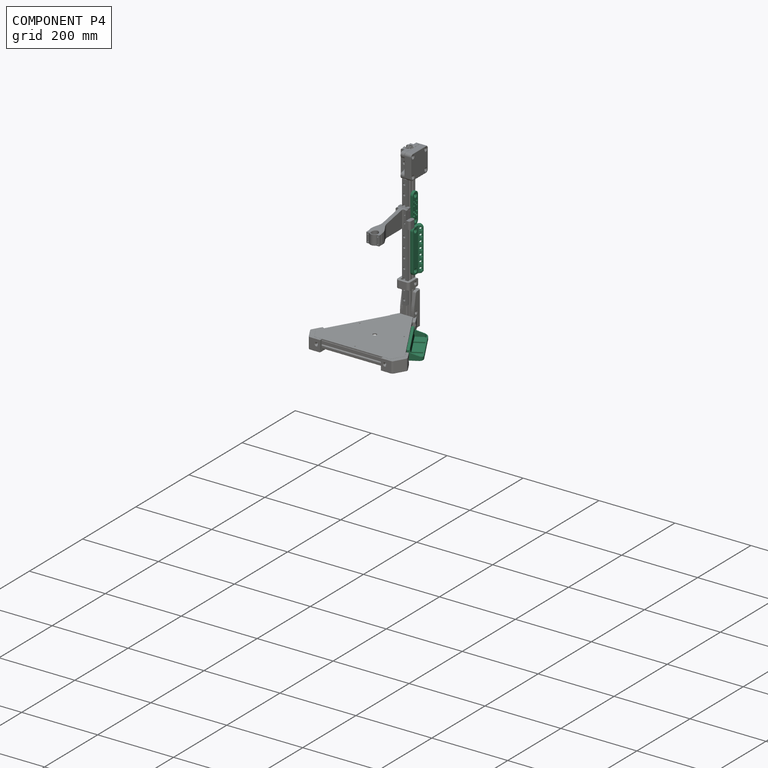
[diagram: component P4 — assembled]
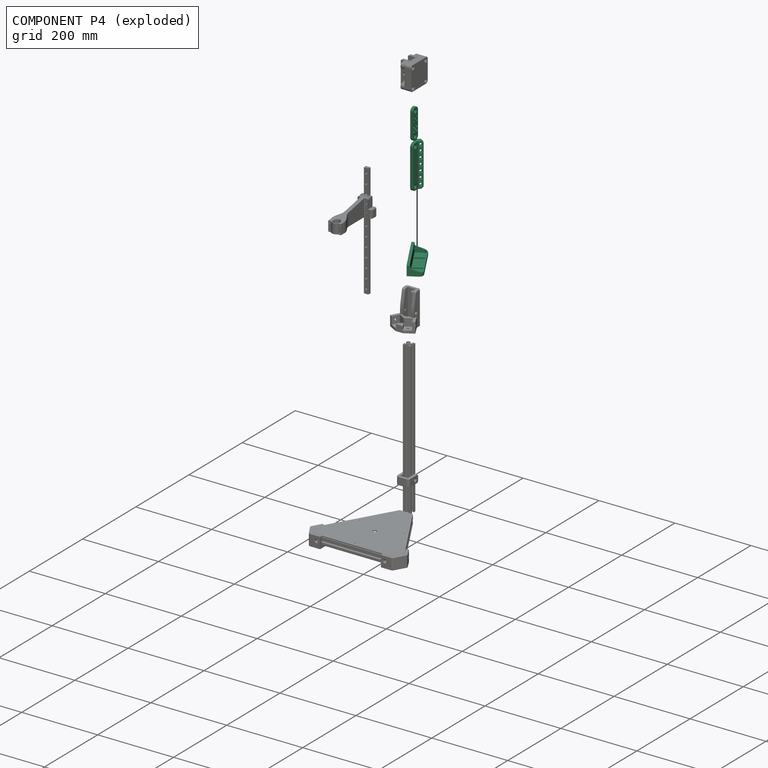
[diagram: component P4 — exploded]
COMPONENT P4 — recipe-attached ("Addons", modeled in this document).
Held by: resting contact with P1 (derived edge); resting contact with P2 (derived edge).
Construction recipe (the document's own serialized feature program — sketch geometry with constraints, then the solid features built on it; lengths are millimeters unless a unit is written):

FEATURE [Sketcher::SketchObject] Sketch104
  ArcFitTolerance = 1e-06
  AttachmentSupport = -> [Origin078]
  ExternalTypes = [0]
  FullyConstrained = true
  MakeInternals = false
  MapMode = 5
  sketch-geometry (9):
    g0: LineSegment [constr] StartX=10 StartY=-10 StartZ=0 EndX=10 EndY=17.1421 EndZ=0
    g1: LineSegment [constr] StartX=10 StartY=17.1421 StartZ=0 EndX=18.4853 EndY=25.6274 EndZ=0
    g2: LineSegment StartX=18.4853 StartY=25.6274 StartZ=0 EndX=25.5563 EndY=18.5563 EndZ=0
    g3: LineSegment StartX=25.5563 StartY=18.5563 StartZ=0 EndX=17 EndY=10 EndZ=0
    g4: LineSegment StartX=17 StartY=10 StartZ=0 EndX=17 EndY=-10 EndZ=0
    g5: LineSegment StartX=17 StartY=-10 StartZ=0 EndX=10 EndY=-10 EndZ=0
    g6: LineSegment StartX=10 StartY=-10 StartZ=0 EndX=10 EndY=10 EndZ=0
    g7: LineSegment StartX=10 StartY=10 StartZ=0 EndX=2.85786 EndY=10 EndZ=0
    g8: LineSegment StartX=2.85786 StartY=10 StartZ=0 EndX=18.4853 EndY=25.6274 EndZ=0
  constraints (25):
    c: Coincident(g1,g0)
    c: Coincident(g2,g1)
    c: Coincident(g3,g2)
    c: Coincident(g3,g4)
    c: Vertical(g4)
    c: Coincident(g4,g5)
    c: Coincident(g5,g0)
    c: Horizontal(g5)
    c: Parallel(g3,g1)
    c: Perpendicular(g1,g2)
    c: Angle(g1,g0) = 0.785398
    c: Distance(g2,g2) = 10
    c: DistanceX(g-1,g0) = 10
    c: Distance(g5,g5) = 7
    c: Distance(g1,g1) = 12
    c: DistanceY(g0,g-1) = 10
    c: Vertical(g0)
    c: DistanceY(g-1,g3) = 10
    c: Coincident(g0,g6)
    c: Coincident(g6,g7)
    c: Horizontal(g7)
    c: Coincident(g7,g8)
    c: Coincident(g8,g1)
    c: PointOnObject(g0,g8)
    c: Symmetric(g6,g0,g-1)
FEATURE [PartDesign::Pad] Pad048
  Direction = (0,0,1)
  Length = 115
  Length2 = 10
  Profile = -> Sketch104
  ReferenceAxis = -> Sketch104 [N_Axis]
  Refine = true
  SideType = 2
  Suppressed = false
  Type = 0
  Type2 = 0
FEATURE [Sketcher::SketchObject] Sketch105
  ArcFitTolerance = 1e-06
  AttachmentSupport = -> [Pad048]
  ExternalGeometry = -> [Pad048]
  ExternalTypes = [0]
  FullyConstrained = true
  MakeInternals = false
  MapMode = 5
  Placement = pos=(17,0,0) rot=(0.57735,0.57735,0.57735;2.0944rad)
  sketch-geometry (1):
    g0: Circle CenterX=0 CenterY=-47.5 CenterZ=0 NormalX=0 NormalY=0 NormalZ=1 AngleXU=0 Radius=2.7
  constraints (3):
    c: PointOnObject(g0,g-2)
    c: Diameter(g0) = 5.4
    c: Distance(g0,g-3) = 10
FEATURE [PartDesign::Pocket] Pocket018
  BaseFeature = -> Pad048
  Direction = (-1,0,0)
  Length = 5
  Length2 = 5
  Profile = -> Sketch105
  ReferenceAxis = -> Sketch105 [N_Axis]
  Refine = true
  SideType = 0
  Suppressed = false
  Type = 2
  Type2 = 0
FEATURE [PartDesign::Chamfer] Chamfer060
  Angle = 45
  Base = -> Pocket018 [Edge21]
  BaseFeature = -> Pocket018
  ChamferType = 0
  FlipDirection = false
  Refine = true
  Size = 3
  Size2 = 1
  SupportTransform = false
  Suppressed = false
  UseAllEdges = false
FEATURE [PartDesign::Mirrored] Mirrored001
  BaseFeature = -> Chamfer060
  MirrorPlane = -> XY_Plane044
  Originals = -> [Chamfer060,Pocket018]
  Refine = true
  Suppressed = false
  TransformMode = 0
FEATURE [PartDesign::Fillet] Fillet042
  Base = -> Mirrored001 [Edge11,Edge16]
  BaseFeature = -> Mirrored001
  Radius = 10
  Refine = true
  SupportTransform = false
  Suppressed = false
  UseAllEdges = false
FEATURE [Sketcher::SketchObject] Sketch106
  ArcFitTolerance = 1e-06
  AttachmentSupport = -> [Fillet042]
  ExternalGeometry = -> [Fillet042]
  ExternalTypes = [0,0,0,0]
  FullyConstrained = true
  MakeInternals = false
  MapMode = 5
  Placement = pos=(3.5,-3.5,0) rot=(0.862856,0.357407,0.357407;1.71777rad)
  sketch-geometry (2):
    g0: Circle CenterX=25.1421 CenterY=47.5 CenterZ=0 NormalX=0 NormalY=0 NormalZ=1 AngleXU=0 Radius=2.7
    g1: LineSegment [constr] StartX=25.1421 StartY=57.5 StartZ=0 EndX=25.1421 EndY=-57.5 EndZ=0
  constraints (6):
    c: Symmetric(g-3,g-3,g1)
    c: PointOnObject(g1,g-4)
    c: Vertical(g1)
    c: PointOnObject(g0,g1)
    c: Diameter(g0) = 5.4
    c: Distance(g0,g-3) = 10
FEATURE [PartDesign::Pocket] Pocket019
  BaseFeature = -> Fillet042
  Direction = (-0.707107,0.707107,1e-16)
  Length = 5
  Length2 = 5
  Profile = -> Sketch106
  ReferenceAxis = -> Sketch106 [N_Axis]
  Refine = true
  SideType = 0
  Suppressed = false
  Type = 2
  Type2 = 0
FEATURE [Sketcher::SketchObject] Sketch107
  ArcFitTolerance = 1e-06
  AttachmentSupport = -> [Pocket019]
  ExternalGeometry = -> [Pocket019]
  ExternalTypes = [0]
  FullyConstrained = true
  MakeInternals = false
  MapMode = 5
  Placement = pos=(-3.57107,3.57107,0) rot=(-0.281085,0.678598,0.678598;3.68962rad)
  sketch-geometry (1):
    g0: Circle CenterX=-25.1421 CenterY=47.5 CenterZ=0 NormalX=0 NormalY=0 NormalZ=1 AngleXU=0 Radius=5
  constraints (2):
    c: Coincident(g0,g-3)
    c: Diameter(g0) = 10
FEATURE [PartDesign::Pocket] Pocket020
  BaseFeature = -> Pocket019
  Direction = (0.707107,-0.707107,0)
  Length = 1.4
  Length2 = 5
  Profile = -> Sketch107
  ReferenceAxis = -> Sketch107 [N_Axis]
  Refine = true
  SideType = 0
  Suppressed = false
  Type = 0
  Type2 = 0
FEATURE [PartDesign::Chamfer] Chamfer061
  Angle = 45
  Base = -> Pocket020 [Edge39]
  BaseFeature = -> Pocket020
  ChamferType = 0
  FlipDirection = false
  Refine = true
  Size = 0.4
  Size2 = 1
  SupportTransform = false
  Suppressed = false
  UseAllEdges = false
FEATURE [PartDesign::Chamfer] Chamfer062
  Angle = 45
  Base = -> Chamfer061 [Edge10,Edge30]
  BaseFeature = -> Chamfer061
  ChamferType = 0
  FlipDirection = false
  Refine = true
  Size = 0.2
  Size2 = 1
  SupportTransform = false
  Suppressed = false
  UseAllEdges = false
FEATURE [Sketcher::SketchObject] Sketch108
  ArcFitTolerance = 1e-06
  AttachmentSupport = -> [Chamfer062]
  ExternalGeometry = -> [Chamfer062]
  ExternalTypes = [0]
  FullyConstrained = true
  MakeInternals = false
  MapMode = 5
  Placement = pos=(3.5,-3.5,0) rot=(0.862856,0.357407,0.357407;1.71777rad)
  sketch-geometry (7):
    g0: LineSegment StartX=25.1421 StartY=52.1765 StartZ=0 EndX=21.0921 EndY=49.8383 EndZ=0
    g1: LineSegment StartX=21.0921 StartY=49.8383 StartZ=0 EndX=21.0921 EndY=45.1617 EndZ=0
    g2: LineSegment StartX=21.0921 StartY=45.1617 StartZ=0 EndX=25.1421 EndY=42.8235 EndZ=0
    g3: LineSegment StartX=25.1421 StartY=42.8235 StartZ=0 EndX=29.1921 EndY=45.1617 EndZ=0
    g4: LineSegment StartX=29.1921 StartY=45.1617 StartZ=0 EndX=29.1921 EndY=49.8383 EndZ=0
    g5: LineSegment StartX=29.1921 StartY=49.8383 StartZ=0 EndX=25.1421 EndY=52.1765 EndZ=0
    g6: Circle [constr] CenterX=25.1421 CenterY=47.5 CenterZ=0 NormalX=0 NormalY=0 NormalZ=1 AngleXU=0 Radius=4.67654
  constraints (16):
    c: Coincident(g0,g1)
    c: Coincident(g1,g2)
    c: Coincident(g2,g3)
    c: Coincident(g3,g4)
    c: Coincident(g4,g5)
    c: Coincident(g5,g0)
    c: Equal(g0, g1-g5) x5
    c: PointOnObject(g0,g6)
    c: PointOnObject(g1,g6)
    c: PointOnObject(g2,g6)
    c: PointOnObject(g3,g6)
    c: PointOnObject(g4,g6)
    c: PointOnObject(g5,g6)
    c: Coincident(g6,g-3)
    c: Vertical(g4)
    c: Distance(g1,g4) = 8.1
FEATURE [PartDesign::Pocket] Pocket021
  BaseFeature = -> Chamfer062
  Direction = (-0.707107,0.707107,1e-16)
  Length = 4
  Length2 = 5
  Profile = -> Sketch108
  ReferenceAxis = -> Sketch108 [N_Axis]
  Refine = true
  SideType = 0
  Suppressed = false
  Type = 0
  Type2 = 0
FEATURE [PartDesign::Chamfer] Chamfer063
  Angle = 45
  Base = -> Pocket021 [Edge9]
  BaseFeature = -> Pocket021
  ChamferType = 0
  FlipDirection = false
  Refine = true
  Size = 0.4
  Size2 = 1
  SupportTransform = false
  Suppressed = false
  UseAllEdges = false
FEATURE [PartDesign::Chamfer] Chamfer064
  Angle = 45
  Base = -> Chamfer063 [Edge37,Edge36]
  BaseFeature = -> Chamfer063
  ChamferType = 0
  FlipDirection = false
  Refine = true
  Size = 5
  Size2 = 1
  SupportTransform = false
  Suppressed = false
  UseAllEdges = false
FEATURE [PartDesign::LinearPattern] LinearPattern
  BaseFeature = -> Chamfer064
  Direction = -> Sketch106 [V_Axis]
  Direction2 = -> Sketch106 [V_Axis]
  Length = 95
  Length2 = 100
  Mode = 0
  Mode2 = 0
  Occurrences = 7
  Occurrences2 = 1
  Offset = 15.8333
  Offset2 = 100
  Originals = -> [Pocket019,Pocket020,Chamfer061,Chamfer062,Pocket021,Chamfer063]
  Refine = true
  Reversed = true
  Reversed2 = false
  SpacingPattern = [0]
  SpacingPattern2 = [0]
  Spacings = [-1,-1,-1,-1,-1,-1]
  Suppressed = false
  TransformMode = 0
FEATURE [PartDesign::Fillet] Fillet043
  Base = -> LinearPattern [Edge155]
  BaseFeature = -> LinearPattern
  Radius = 1
  Refine = true
  SupportTransform = false
  Suppressed = false
  UseAllEdges = false
FEATURE [PartDesign::Chamfer] Chamfer065
  Angle = 45
  Base = -> Fillet043 [Edge80,Edge29,Edge28,Edge27,Edge5,Edge24]
  BaseFeature = -> Fillet043
  ChamferType = 0
  FlipDirection = false
  Refine = true
  Size = 1
  Size2 = 1
  SupportTransform = false
  Suppressed = false
  UseAllEdges = false
FEATURE [PartDesign::Body] Body037  label="PorteOutils-M5"
  AllowCompound = false
  Group = -> [Sketch104,Pad048,Sketch105,Pocket018,Chamfer060,Mirrored001,Fillet042,Sketch106,Pocket019,Sketch107,Pocket020,Chamfer061,Chamfer062,Sketch108,Pocket021,Chamfer063,Chamfer064,LinearPattern,Fillet043,Chamfer065]
  Origin = -> Origin078
  Placement = pos=(0,0,167) rot=(0,0,1;0rad)
  Tip = -> Chamfer065
FEATURE [Sketcher::SketchObject] Sketch109
  ArcFitTolerance = 1e-06
  AttachmentSupport = -> [Origin080]
  ExternalTypes = [0]
  FullyConstrained = true
  MakeInternals = false
  MapMode = 5
  Placement = pos=(0,0,0) rot=(0.57735,0.57735,0.57735;2.0944rad)
  sketch-geometry (7):
    g0: LineSegment StartX=-10 StartY=-40 StartZ=0 EndX=10 EndY=-40 EndZ=0
    g1: LineSegment StartX=10 StartY=-40 StartZ=0 EndX=10 EndY=40 EndZ=0
    g2: LineSegment StartX=10 StartY=40 StartZ=0 EndX=-10 EndY=40 EndZ=0
    g3: LineSegment StartX=-10 StartY=40 StartZ=0 EndX=-10 EndY=-40 EndZ=0
    g4: GeomPoint [constr] X=0 Y=0 Z=0
    g5: Circle CenterX=0 CenterY=-30 CenterZ=0 NormalX=0 NormalY=0 NormalZ=1 AngleXU=0 Radius=2.7
    g6: Circle CenterX=0 CenterY=30 CenterZ=0 NormalX=0 NormalY=0 NormalZ=1 AngleXU=0 Radius=2.7
  constraints (17):
    c: Coincident(g0,g1)
    c: Coincident(g1,g2)
    c: Coincident(g2,g3)
    c: Coincident(g3,g0)
    c: Horizontal(g0)
    c: Horizontal(g2)
    c: Vertical(g1)
    c: Vertical(g3)
    c: Symmetric(g2,g0,g4)
    c: Coincident(g4,g-1)
    c: Distance(g2,g2) = 20
    c: PointOnObject(g5,g-2)
    c: Equal(g6,g5)
    c: Symmetric(g6,g5,g-1)
    c: Diameter(g6) = 5.4
    c: DistanceY(g6,g1) = 10
    c: DistanceY(g1,g1) = 80
FEATURE [PartDesign::Pad] Pad049
  Direction = (1,0,0)
  Length = 7
  Length2 = 10
  Profile = -> Sketch109
  ReferenceAxis = -> Sketch109 [N_Axis]
  Refine = true
  SideType = 0
  Suppressed = false
  Type = 0
  Type2 = 0
FEATURE [PartDesign::Fillet] Fillet044
  Base = -> Pad049 [Edge8,Edge5,Edge2,Edge1]
  BaseFeature = -> Pad049
  Radius = 9.9
  Refine = true
  SupportTransform = false
  Suppressed = false
  UseAllEdges = false
FEATURE [PartDesign::Chamfer] Chamfer066
  Angle = 45
  Base = -> Fillet044 [Edge24,Edge23]
  BaseFeature = -> Fillet044
  ChamferType = 0
  FlipDirection = false
  Refine = true
  Size = 3
  Size2 = 1
  SupportTransform = false
  Suppressed = false
  UseAllEdges = false
FEATURE [Sketcher::SketchObject] Sketch110
  ArcFitTolerance = 1e-06
  AttachmentSupport = -> [Chamfer066]
  ExternalTypes = [0]
  FullyConstrained = true
  MakeInternals = false
  MapMode = 5
  Placement = pos=(7,0,0) rot=(0.57735,0.57735,0.57735;2.0944rad)
  sketch-geometry (11):
    g0: Circle CenterX=-5 CenterY=-17 CenterZ=0 NormalX=0 NormalY=0 NormalZ=1 AngleXU=0 Radius=1.6
    g1: Circle CenterX=5 CenterY=-17 CenterZ=0 NormalX=0 NormalY=0 NormalZ=1 AngleXU=0 Radius=1.6
    g2: Circle CenterX=0 CenterY=-12 CenterZ=0 NormalX=0 NormalY=0 NormalZ=1 AngleXU=0 Radius=1.6
    g3: Circle CenterX=-5 CenterY=-7 CenterZ=0 NormalX=0 NormalY=0 NormalZ=1 AngleXU=0 Radius=1.6
    g4: Circle CenterX=5 CenterY=-7 CenterZ=0 NormalX=0 NormalY=0 NormalZ=1 AngleXU=0 Radius=1.6
    g5: Circle [constr] CenterX=0 CenterY=-12 CenterZ=0 NormalX=0 NormalY=0 NormalZ=1 AngleXU=0 Radius=7.07107
    g6: LineSegment [constr] StartX=-5 StartY=-17 StartZ=0 EndX=5 EndY=-17 EndZ=0
    g7: LineSegment [constr] StartX=5 StartY=-17 StartZ=0 EndX=5 EndY=-7 EndZ=0
    g8: LineSegment [constr] StartX=5 StartY=-7 StartZ=0 EndX=-5 EndY=-7 EndZ=0
    g9: LineSegment [constr] StartX=-5 StartY=-7 StartZ=0 EndX=-5 EndY=-17 EndZ=0
    g10: GeomPoint [constr] X=0 Y=-12 Z=0
  constraints (25):
    c: PointOnObject(g2,g-2)
    c: Symmetric(g0,g4,g2)
    c: Symmetric(g1,g3,g2)
    c: Equal(g0,g2)
    c: Equal(g2,g1)
    c: Equal(g1,g4)
    c: Equal(g4,g3)
    c: Coincident(g5,g2)
    c: PointOnObject(g4,g5)
    c: PointOnObject(g1,g5)
    c: Coincident(g6,g7)
    c: Coincident(g7,g8)
    c: Coincident(g8,g9)
    c: Coincident(g9,g6)
    c: Horizontal(g6)
    c: Horizontal(g8)
    c: Vertical(g9)
    c: Symmetric(g8,g6,g10)
    c: Coincident(g10,g2)
    c: Coincident(g7,g4)
    c: Coincident(g6,g1)
    c: Equal(g7,g8)
    c: Diameter(g4) = 3.2
    c: DistanceY(g2,g-1) = 12
    c: Distance(g8,g8) = 10
FEATURE [PartDesign::Pocket] Pocket022
  BaseFeature = -> Chamfer066
  Direction = (-1,0,0)
  Length = 5
  Length2 = 5
  Profile = -> Sketch110
  ReferenceAxis = -> Sketch110 [N_Axis]
  Refine = true
  SideType = 0
  Suppressed = false
  Type = 2
  Type2 = 0
FEATURE [PartDesign::Mirrored] Mirrored002
  BaseFeature = -> Pocket022
  MirrorPlane = -> XY_Plane045
  Originals = -> [Pocket022]
  Refine = true
  Suppressed = false
  TransformMode = 0
FEATURE [Sketcher::SketchObject] Sketch111
  ArcFitTolerance = 1e-06
  AttachmentSupport = -> [Mirrored002]
  ExternalGeometry = -> [Mirrored002]
  ExternalTypes = [0,0,0,0,0]
  FullyConstrained = true
  MakeInternals = false
  MapMode = 5
  Placement = pos=(7,0,0) rot=(0.57735,0.57735,0.57735;2.0944rad)
  sketch-geometry (5):
    g0: Circle CenterX=-5 CenterY=-7 CenterZ=0 NormalX=0 NormalY=0 NormalZ=1 AngleXU=0 Radius=2.25
    g1: Circle CenterX=5 CenterY=-7 CenterZ=0 NormalX=0 NormalY=0 NormalZ=1 AngleXU=0 Radius=2.25
    g2: Circle CenterX=0 CenterY=-12 CenterZ=0 NormalX=0 NormalY=0 NormalZ=1 AngleXU=0 Radius=2.25
    g3: Circle CenterX=5 CenterY=-17 CenterZ=0 NormalX=0 NormalY=0 NormalZ=1 AngleXU=0 Radius=2.25
    g4: Circle CenterX=-5 CenterY=-17 CenterZ=0 NormalX=0 NormalY=0 NormalZ=1 AngleXU=0 Radius=2.25
  constraints (10):
    c: Coincident(g0,g-3)
    c: Coincident(g1,g-7)
    c: Coincident(g2,g-4)
    c: Coincident(g3,g-6)
    c: Coincident(g4,g-5)
    c: Equal(g2,g1)
    c: Equal(g0,g2)
    c: Equal(g4,g2)
    c: Equal(g3,g2)
    c: Diameter(g1) = 4.5
FEATURE [PartDesign::Pocket] Pocket023
  BaseFeature = -> Mirrored002
  Direction = (-1,0,0)
  Length = 10
  Length2 = 5
  Profile = -> Sketch111
  ReferenceAxis = -> Sketch111 [N_Axis]
  Refine = true
  SideType = 0
  Suppressed = false
  Type = 0
  Type2 = 0
FEATURE [PartDesign::Chamfer] Chamfer067
  Angle = 45
  Base = -> Pocket023 [Edge12,Edge20,Edge17,Edge19,Edge11,Edge10,Edge16,Edge14,Edge15,Edge9]
  BaseFeature = -> Pocket023
  ChamferType = 0
  FlipDirection = false
  Refine = true
  Size = 0.6
  Size2 = 1
  SupportTransform = false
  Suppressed = false
  UseAllEdges = false
FEATURE [PartDesign::Chamfer] Chamfer068
  Angle = 45
  Base = -> Chamfer067 [Edge6,Edge32]
  BaseFeature = -> Chamfer067
  ChamferType = 0
  FlipDirection = false
  Refine = true
  Size = 0.4
  Size2 = 1
  SupportTransform = false
  Suppressed = false
  UseAllEdges = false
FEATURE [PartDesign::Body] Body038  label="RemovalToolHolder"
  AllowCompound = false
  Group = -> [Sketch109,Pad049,Fillet044,Chamfer066,Sketch110,Pocket022,Mirrored002,Sketch111,Pocket023,Chamfer067,Chamfer068]
  Origin = -> Origin080
  Placement = pos=(10,0,269) rot=(0,0,1;0rad)
  Tip = -> Chamfer068
FEATURE [Sketcher::SketchObject] Sketch112
  ArcFitTolerance = 1e-06
  AttachmentSupport = -> [Origin082]
  ExternalTypes = [0]
  FullyConstrained = true
  MakeInternals = false
  MapMode = 5
  Placement = pos=(0,0,0) rot=(0.57735,0.57735,0.57735;2.0944rad)
  sketch-geometry (4):
    g0: LineSegment StartX=-60 StartY=-17 StartZ=0 EndX=-60 EndY=10 EndZ=0
    g1: LineSegment StartX=-60 StartY=10 StartZ=0 EndX=60 EndY=10 EndZ=0
    g2: LineSegment StartX=60 StartY=10 StartZ=0 EndX=60 EndY=-17 EndZ=0
    g3: LineSegment StartX=60 StartY=-17 StartZ=0 EndX=-60 EndY=-17 EndZ=0
  constraints (11):
    c: Vertical(g0)
    c: Coincident(g0,g1)
    c: Coincident(g1,g2)
    c: Vertical(g2)
    c: Coincident(g2,g3)
    c: Coincident(g3,g0)
    c: Horizontal(g3)
    c: DistanceY(g2,g-1) = 17
    c: DistanceY(g-1,g1) = 10
    c: DistanceX(g1,g1) = 120
    c: Symmetric(g0,g1,g-2)
FEATURE [PartDesign::Pad] Pad050
  Direction = (1,0,0)
  Length = 7
  Length2 = 10
  Profile = -> Sketch112
  ReferenceAxis = -> Sketch112 [N_Axis]
  Refine = true
  SideType = 0
  Suppressed = false
  Type = 0
  Type2 = 0
FEATURE [Sketcher::SketchObject] Sketch113
  ArcFitTolerance = 1e-06
  AttachmentSupport = -> [Pad050]
  ExternalGeometry = -> [Pad050]
  ExternalTypes = [0]
  FullyConstrained = true
  MakeInternals = false
  MapMode = 5
  Placement = pos=(7,0,0) rot=(0.57735,0.57735,0.57735;2.0944rad)
  sketch-geometry (2):
    g0: Circle CenterX=-47 CenterY=0 CenterZ=0 NormalX=0 NormalY=0 NormalZ=1 AngleXU=0 Radius=2.7
    g1: Circle CenterX=47 CenterY=0 CenterZ=0 NormalX=0 NormalY=0 NormalZ=1 AngleXU=0 Radius=2.7
  constraints (5):
    c: PointOnObject(g0,g-1)
    c: Symmetric(g1,g0,g-2)
    c: Equal(g1,g0)
    c: Diameter(g1) = 5.4
    c: DistanceX(g1,g-3) = 13
FEATURE [PartDesign::Pocket] Pocket024
  BaseFeature = -> Pad050
  Direction = (-1,0,0)
  Length = 5
  Length2 = 5
  Profile = -> Sketch113
  ReferenceAxis = -> Sketch113 [N_Axis]
  Refine = true
  SideType = 0
  Suppressed = false
  Type = 2
  Type2 = 0
FEATURE [PartDesign::Chamfer] Chamfer069
  Angle = 45
  Base = -> Pocket024 [Edge16,Edge15]
  BaseFeature = -> Pocket024
  ChamferType = 0
  FlipDirection = false
  Refine = true
  Size = 2
  Size2 = 1
  SupportTransform = false
  Suppressed = false
  UseAllEdges = false
FEATURE [Sketcher::SketchObject] Sketch114
  ArcFitTolerance = 1e-06
  AttachmentSupport = -> [Chamfer069]
  ExternalGeometry = -> [Chamfer069]
  ExternalTypes = [0,0]
  FullyConstrained = true
  MakeInternals = false
  MapMode = 5
  Placement = pos=(0,0,-17) rot=(1,0,0;3.14159rad)
  sketch-geometry (4):
    g0: LineSegment StartX=7 StartY=60 StartZ=0 EndX=7 EndY=-60 EndZ=0
    g1: LineSegment StartX=7 StartY=-60 StartZ=0 EndX=37 EndY=-60 EndZ=0
    g2: LineSegment StartX=37 StartY=-60 StartZ=0 EndX=37 EndY=60 EndZ=0
    g3: LineSegment StartX=37 StartY=60 StartZ=0 EndX=7 EndY=60 EndZ=0
  constraints (10):
    c: Coincident(g0,g1)
    c: Coincident(g1,g2)
    c: Coincident(g2,g3)
    c: Coincident(g3,g0)
    c: Vertical(g2)
    c: Horizontal(g1)
    c: Horizontal(g3)
    c: Coincident(g0,g-3)
    c: Coincident(g0,g-4)
    c: DistanceX(g3,g3) = 30
FEATURE [PartDesign::Pad] Pad051
  BaseFeature = -> Chamfer069
  Direction = (0,0,-1)
  Length = 3
  Length2 = 10
  Profile = -> Sketch114
  ReferenceAxis = -> Sketch114 [N_Axis]
  Refine = true
  Reversed = true
  SideType = 0
  Suppressed = false
  Type = 0
  Type2 = 0
FEATURE [PartDesign::Fillet] Fillet045
  Base = -> Pad051 [Edge23,Edge22]
  BaseFeature = -> Pad051
  Radius = 10
  Refine = true
  SupportTransform = false
  Suppressed = false
  UseAllEdges = false
FEATURE [Sketcher::SketchObject] Sketch115
  ArcFitTolerance = 1e-06
  AttachmentSupport = -> [Fillet045]
  ExternalGeometry = -> [Fillet045]
  ExternalTypes = [0,0,0,0,0]
  FullyConstrained = true
  MakeInternals = false
  MapMode = 5
  Placement = pos=(0,0,-14) rot=(0,0,1;0rad)
  sketch-geometry (7):
    g0: LineSegment StartX=27 StartY=-57 StartZ=0 EndX=7 EndY=-57 EndZ=0
    g1: ArcOfCircle CenterX=27 CenterY=-50 CenterZ=0 NormalX=0 NormalY=0 NormalZ=-1 AngleXU=-1.5708 Radius=7 StartAngle=4.71239 EndAngle=6.28319
    g2: LineSegment StartX=34 StartY=50 StartZ=0 EndX=34 EndY=-50 EndZ=0
    g3: ArcOfCircle CenterX=27 CenterY=50 CenterZ=0 NormalX=0 NormalY=0 NormalZ=-1 AngleXU=-1.5708 Radius=7 StartAngle=3.14159 EndAngle=4.71239
    g4: LineSegment StartX=7 StartY=57 StartZ=0 EndX=27 EndY=57 EndZ=0
    g5: LineSegment StartX=7 StartY=-57 StartZ=0 EndX=7 EndY=-60 EndZ=0
    g6: LineSegment StartX=7 StartY=57 StartZ=0 EndX=7 EndY=60 EndZ=0
  constraints (16):
    c: Tangent(g0,g1) = 1.5708
    c: Tangent(g1,g2) = 1.5708
    c: Tangent(g2,g3) = 1.5708
    c: Tangent(g3,g4) = 1.5708
    c: Equal(g4,g0)
    c: Horizontal(g4)
    c: Horizontal(g0)
    c: Vertical(g2)
    c: Coincident(g3,g-4)
    c: Coincident(g1,g-6)
    c: Coincident(g5,g0)
    c: Coincident(g5,g-7)
    c: Coincident(g6,g4)
    c: Coincident(g6,g-3)
    c: Vertical(g6)
    c: Distance(g6,g6) = 3
FEATURE [PartDesign::Pad] Pad052
  BaseFeature = -> Fillet045
  Direction = (0,0,1)
  Length = 5
  Length2 = 10
  Profile = -> Sketch115
  ReferenceAxis = -> Sketch115 [N_Axis]
  Refine = true
  SideType = 0
  Suppressed = false
  Type = 0
  Type2 = 0
FEATURE [PartDesign::Draft] Draft002
  Angle = 20
  Base = -> Pad052 [Face10]
  BaseFeature = -> Pad052
  NeutralPlane = -> Pad052 [Face18]
  Refine = true
  SupportTransform = false
  Suppressed = false
FEATURE [PartDesign::Fillet] Fillet046
  Base = -> Draft002 [Edge33,Edge32]
  BaseFeature = -> Draft002
  Radius = 5
  Refine = true
  SupportTransform = false
  Suppressed = false
  UseAllEdges = false
FEATURE [PartDesign::Chamfer] Chamfer070
  Angle = 45
  Base = -> Fillet046 [Edge40,Edge48]
  BaseFeature = -> Fillet046
  ChamferType = 0
  FlipDirection = false
  Refine = true
  Size = 2
  Size2 = 1
  SupportTransform = false
  Suppressed = false
  UseAllEdges = false
FEATURE [Sketcher::SketchObject] Sketch116
  ArcFitTolerance = 1e-06
  AttachmentSupport = -> [Chamfer070]
  ExternalGeometry = -> [Chamfer070]
  ExternalTypes = [0,0]
  FullyConstrained = true
  MakeInternals = false
  MapMode = 5
  Placement = pos=(0,0,-14) rot=(0,0,1;0rad)
  sketch-geometry (4):
    g0: LineSegment StartX=7 StartY=27 StartZ=0 EndX=7 EndY=25 EndZ=0
    g1: LineSegment StartX=7 StartY=25 StartZ=0 EndX=34 EndY=25 EndZ=0
    g2: LineSegment StartX=34 StartY=25 StartZ=0 EndX=34 EndY=27 EndZ=0
    g3: LineSegment StartX=34 StartY=27 StartZ=0 EndX=7 EndY=27 EndZ=0
  constraints (12):
    c: Coincident(g0,g1)
    c: Coincident(g1,g2)
    c: Coincident(g2,g3)
    c: Coincident(g3,g0)
    c: Vertical(g0)
    c: Vertical(g2)
    c: Horizontal(g1)
    c: Horizontal(g3)
    c: PointOnObject(g2,g-3)
    c: PointOnObject(g0,g-4)
    c: DistanceY(g2,g2) = 2
    c: DistanceY(g-1,g0) = 25
FEATURE [PartDesign::Pad] Pad053
  BaseFeature = -> Chamfer070
  Direction = (0,0,1)
  Length = 3
  Length2 = 10
  Profile = -> Sketch116
  ReferenceAxis = -> Sketch116 [N_Axis]
  Refine = true
  SideType = 0
  Suppressed = false
  Type = 0
  Type2 = 0
FEATURE [PartDesign::Fillet] Fillet047
  Base = -> Pad053 [Edge10,Edge42]
  BaseFeature = -> Pad053
  Radius = 2
  Refine = true
  SupportTransform = false
  Suppressed = false
  UseAllEdges = false
FEATURE [PartDesign::Mirrored] Mirrored003
  BaseFeature = -> Fillet047
  MirrorPlane = -> Sketch116 [H_Axis]
  Originals = -> [Pad053,Fillet047]
  Refine = true
  Suppressed = false
  TransformMode = 0
FEATURE [PartDesign::Chamfer] Chamfer071
  Angle = 45
  Base = -> Mirrored003 [Face27,Edge48,Edge14,Edge13,Edge12,Edge47,Edge51,Edge58,Edge55,Edge53,Edge91,Edge90]
  BaseFeature = -> Mirrored003
  ChamferType = 0
  FlipDirection = false
  Refine = true
  Size = 0.4
  Size2 = 1
  SupportTransform = false
  Suppressed = false
  UseAllEdges = false
FEATURE [PartDesign::Body] Body039  label="PorteInsert"
  AllowCompound = false
  Group = -> [Sketch112,Pad050,Sketch113,Pocket024,Chamfer069,Sketch114,Pad051,Fillet045,Sketch115,Pad052,Draft002,Fillet046,Chamfer070,Sketch116,Pad053,Fillet047,Mirrored003,Chamfer071]
  Origin = -> Origin082
  Placement = pos=(66.1603,-94.5929,0) rot=(0,0,1;0.523599rad)
  Tip = -> Chamfer071
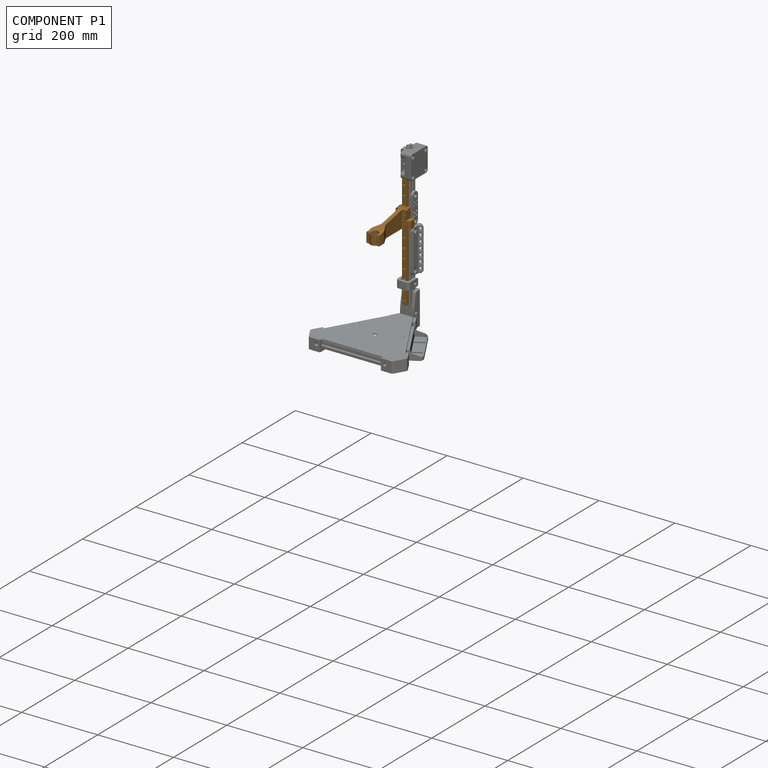
[diagram: component P1 — assembled]
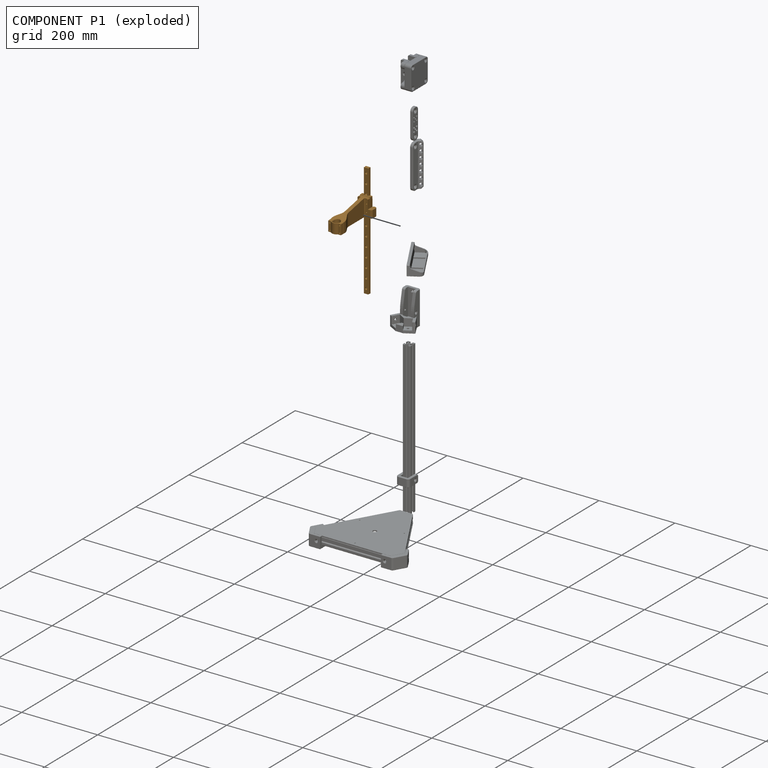
[diagram: component P1 — exploded]
COMPONENT P1 — geometry summary ("EnsembleBras"; no construction recipe available for this part):
  bounding box: 300.0 x 130.8 x 41.0 mm
  tessellated surface: 42,826 triangles
  volume: 98349 mm^3 (6% of its bounding box)
Held by: resting contact with P0 (derived edge); resting contact with P2 (derived edge); resting contact with P3 (derived edge); resting contact with P4 (derived edge).
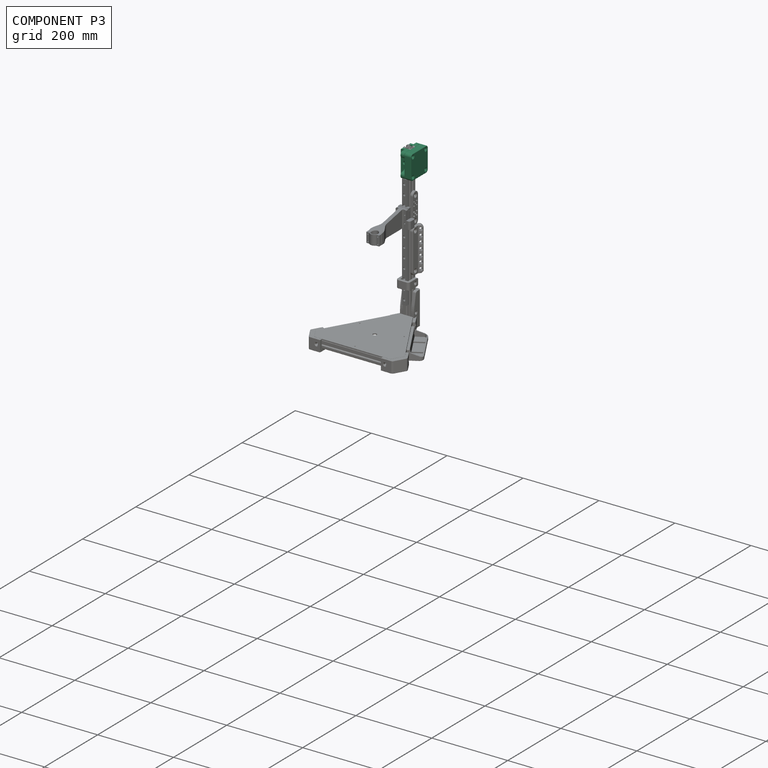
[diagram: component P3 — assembled]
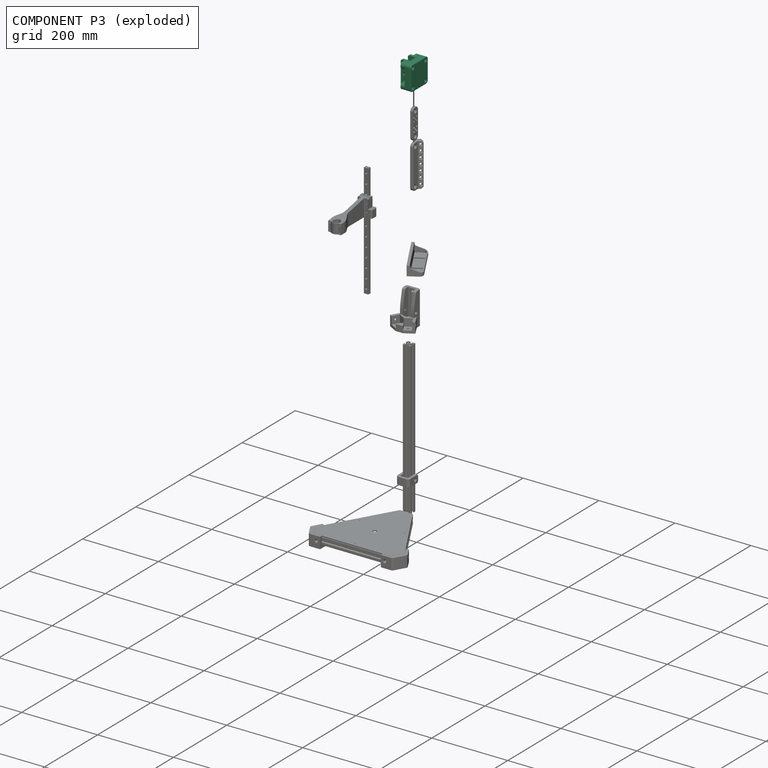
[diagram: component P3 — exploded]
COMPONENT P3 — recipe-attached ("EnsembleEnrouleur", modeled in this document).
Held by: resting contact with P1 (derived edge); resting contact with P2 (derived edge).
Construction recipe (the document's own serialized feature program — sketch geometry with constraints, then the solid features built on it; lengths are millimeters unless a unit is written):

FEATURE [Sketcher::SketchObject] Sketch015
  ArcFitTolerance = 1e-06
  AttachmentSupport = -> [YZ_Plane005]
  ExternalTypes = [0]
  FullyConstrained = true
  MakeInternals = false
  MapMode = 5
  Placement = pos=(0,0,0) rot=(0.57735,0.57735,0.57735;2.0944rad)
  sketch-geometry (14):
    g0: LineSegment StartX=-32 StartY=-32 StartZ=0 EndX=-32 EndY=32 EndZ=0
    g1: LineSegment StartX=-32 StartY=32 StartZ=0 EndX=32 EndY=32 EndZ=0
    g2: LineSegment StartX=32 StartY=32 StartZ=0 EndX=32 EndY=-32 EndZ=0
    g3: LineSegment StartX=32 StartY=-32 StartZ=0 EndX=-32 EndY=-32 EndZ=0
    g4: GeomPoint [constr] X=0 Y=0 Z=0
    g5: Circle CenterX=-24 CenterY=24 CenterZ=0 NormalX=0 NormalY=0 NormalZ=1 AngleXU=0 Radius=2.25
    g6: Circle CenterX=-24 CenterY=-24 CenterZ=0 NormalX=0 NormalY=0 NormalZ=1 AngleXU=0 Radius=2.25
    g7: Circle CenterX=24 CenterY=-24 CenterZ=0 NormalX=0 NormalY=0 NormalZ=1 AngleXU=0 Radius=2.25
    g8: Circle CenterX=24 CenterY=24 CenterZ=0 NormalX=0 NormalY=0 NormalZ=1 AngleXU=0 Radius=2.25
    g9: LineSegment [constr] StartX=-24 StartY=-24 StartZ=0 EndX=-24 EndY=24 EndZ=0
    g10: LineSegment [constr] StartX=-24 StartY=24 StartZ=0 EndX=24 EndY=24 EndZ=0
    g11: LineSegment [constr] StartX=24 StartY=24 StartZ=0 EndX=24 EndY=-24 EndZ=0
    g12: LineSegment [constr] StartX=24 StartY=-24 StartZ=0 EndX=-24 EndY=-24 EndZ=0
    g13: GeomPoint [constr] X=0 Y=0 Z=0
  constraints (32):
    c: Coincident(g0,g1)
    c: Coincident(g1,g2)
    c: Coincident(g2,g3)
    c: Coincident(g3,g0)
    c: Horizontal(g1)
    c: Horizontal(g3)
    c: Vertical(g0)
    c: Vertical(g2)
    c: Symmetric(g1,g0,g4)
    c: Coincident(g4,g-1)
    c: Equal(g2,g1)
    c: DistanceY(g2,g2) = 64
    c: Equal(g8,g5)
    c: Equal(g8,g6)
    c: Equal(g8,g7)
    c: Diameter(g8) = 4.5
    c: Coincident(g9,g10)
    c: Coincident(g10,g11)
    c: Coincident(g11,g12)
    c: Coincident(g12,g9)
    c: Horizontal(g10)
    c: Horizontal(g12)
    c: Vertical(g9)
    c: Vertical(g11)
    c: Symmetric(g10,g9,g13)
    c: Coincident(g13,g4)
    c: Coincident(g10,g8)
    c: Coincident(g11,g7)
    c: Coincident(g6,g9)
    c: Coincident(g5,g9)
    c: Equal(g11,g10)
    c: DistanceY(g11,g11) = 48
FEATURE [PartDesign::Pad] Pad007
  AlongSketchNormal = false
  Direction = (1,0,0)
  Length = 17.5
  Length2 = 10
  Placement = pos=(0,0,0) rot=(1,1,1;2.0944rad)
  Profile = -> Sketch015
  ReferenceAxis = -> Sketch015 [N_Axis]
  Refine = true
  SideType = 2
  Suppressed = false
  Type = 0
  Type2 = 0
FEATURE [PartDesign::Fillet] Fillet005
  Base = -> Pad007 [Edge2,Edge5,Edge8,Edge1]
  BaseFeature = -> Pad007
  Placement = pos=(0,0,0) rot=(1,1,1;2.0944rad)
  Radius = 7
  Refine = true
  SupportTransform = false
  Suppressed = false
  UseAllEdges = false
FEATURE [Sketcher::SketchObject] Sketch016
  ArcFitTolerance = 1e-06
  AttachmentOffset = pos=(0,0,0) rot=(0,0,1;1.5708rad)
  AttachmentSupport = -> [Fillet005]
  ExternalTypes = [0]
  FullyConstrained = true
  MakeInternals = false
  MapMode = 5
  Placement = pos=(3.6e-15,-1.07e-14,-32) rot=(1,0,0;3.14159rad)
  sketch-geometry (1):
    g0: Circle CenterX=0 CenterY=16 CenterZ=0 NormalX=0 NormalY=0 NormalZ=1 AngleXU=0 Radius=2
  constraints (3):
    c: PointOnObject(g0,g-2)
    c: Diameter(g0) = 4
    c: DistanceY(g0,g-3) = 16
FEATURE [PartDesign::Pad] Pad008
  AlongSketchNormal = false
  BaseFeature = -> Fillet005
  Direction = (0,0,-1)
  Length = 5
  Length2 = 10
  Placement = pos=(0,0,0) rot=(1,1,1;2.0944rad)
  Profile = -> Sketch016
  ReferenceAxis = -> Sketch016 [N_Axis]
  Refine = true
  SideType = 0
  Suppressed = false
  Type = 0
  Type2 = 0
FEATURE [Sketcher::SketchObject] Sketch017
  ArcFitTolerance = 1e-06
  AttachmentSupport = -> [XY_Plane006]
  ExternalTypes = [0]
  FullyConstrained = true
  MakeInternals = false
  MapMode = 5
  sketch-geometry (5):
    g0: LineSegment StartX=-10 StartY=-17 StartZ=0 EndX=-10 EndY=-10 EndZ=0
    g1: LineSegment StartX=-10 StartY=-10 StartZ=0 EndX=10 EndY=-10 EndZ=0
    g2: LineSegment StartX=10 StartY=-10 StartZ=0 EndX=10 EndY=-17 EndZ=0
    g3: LineSegment StartX=10 StartY=-17 StartZ=0 EndX=-10 EndY=-17 EndZ=0
    g4: GeomPoint [constr] X=0 Y=-13.5 Z=0
  constraints (13):
    c: Coincident(g0,g1)
    c: Coincident(g1,g2)
    c: Coincident(g2,g3)
    c: Coincident(g3,g0)
    c: Horizontal(g1)
    c: Horizontal(g3)
    c: Vertical(g0)
    c: Vertical(g2)
    c: Symmetric(g1,g0,g4)
    c: PointOnObject(g4,g-2)
    c: DistanceY(g0,g0) = 7
    c: DistanceY(g1,g-1) = 10
    c: DistanceX(g3,g3) = 20
FEATURE [PartDesign::Pad] Pad009
  AlongSketchNormal = false
  Direction = (0,0,1)
  Length = 64
  Length2 = 10
  Profile = -> Sketch017
  ReferenceAxis = -> Sketch017 [N_Axis]
  Refine = true
  SideType = 2
  Suppressed = false
  Type = 0
  Type2 = 0
FEATURE [Sketcher::SketchObject] Sketch018
  ArcFitTolerance = 1e-06
  AttachmentSupport = -> [XZ_Plane006]
  ExternalTypes = [0]
  FullyConstrained = true
  MakeInternals = false
  MapMode = 5
  Placement = pos=(0,0,0) rot=(1,0,0;1.5708rad)
  sketch-geometry (1):
    g0: Circle CenterX=0 CenterY=0 CenterZ=0 NormalX=0 NormalY=0 NormalZ=1 AngleXU=0 Radius=2.7
  constraints (2):
    c: Coincident(g0,g-1)
    c: Diameter(g0) = 5.4
FEATURE [PartDesign::Pocket] Pocket007
  AlongSketchNormal = false
  BaseFeature = -> Pad009
  Direction = (0,1,-2e-16)
  Length = 5
  Length2 = 10
  Profile = -> Sketch018
  ReferenceAxis = -> Sketch018 [N_Axis]
  Refine = true
  Reversed = true
  SideType = 0
  Suppressed = false
  Type = 1
  Type2 = 0
FEATURE [PartDesign::Chamfer] Chamfer007
  Angle = 45
  Base = -> Pocket007 [Edge8]
  BaseFeature = -> Pocket007
  ChamferType = 0
  FlipDirection = false
  Refine = true
  Size = 2
  Size2 = 1
  SupportTransform = false
  Suppressed = false
  UseAllEdges = false
FEATURE [Sketcher::SketchObject] Sketch019
  ArcFitTolerance = 1e-06
  AttachmentSupport = -> [Chamfer007]
  ExternalGeometry = -> [Chamfer007]
  ExternalTypes = [0]
  FullyConstrained = true
  MakeInternals = false
  MapMode = 5
  Placement = pos=(10,0,0) rot=(0.57735,0.57735,0.57735;2.0944rad)
  sketch-geometry (5):
    g0: LineSegment StartX=-17 StartY=32 StartZ=0 EndX=-32 EndY=32 EndZ=0
    g1: LineSegment StartX=-32 StartY=32 StartZ=0 EndX=-32 EndY=17 EndZ=0
    g2: LineSegment StartX=-32 StartY=17 StartZ=0 EndX=-17 EndY=17 EndZ=0
    g3: LineSegment StartX=-17 StartY=17 StartZ=0 EndX=-17 EndY=32 EndZ=0
    g4: Circle CenterX=-24 CenterY=24 CenterZ=0 NormalX=0 NormalY=0 NormalZ=1 AngleXU=0 Radius=2.2
  constraints (13):
    c: Coincident(g0,g1)
    c: Coincident(g1,g2)
    c: Coincident(g2,g3)
    c: Coincident(g3,g0)
    c: Horizontal(g0)
    c: Horizontal(g2)
    c: Vertical(g1)
    c: Vertical(g3)
    c: Coincident(g0,g-3)
    c: Equal(g2,g1)
    c: DistanceX(g0,g-1) = 32
    c: Coincident(g4,g-4)
    c: Diameter(g4) = 4.4
FEATURE [PartDesign::Pad] Pad010
  AlongSketchNormal = false
  BaseFeature = -> Chamfer007
  Direction = (1,0,0)
  Length = 10
  Length2 = 10
  Profile = -> Sketch019
  ReferenceAxis = -> Sketch019 [N_Axis]
  Refine = true
  Reversed = true
  SideType = 0
  Suppressed = false
  Type = 0
  Type2 = 0
FEATURE [PartDesign::Mirrored] Mirrored
  BaseFeature = -> Pad010
  MirrorPlane = -> XY_Plane006
  Originals = -> [Pad010]
  Refine = true
  Suppressed = false
  TransformMode = 0
FEATURE [PartDesign::Fillet] Fillet006
  Base = -> Mirrored [Edge36,Edge14,Edge22,Edge20]
  BaseFeature = -> Mirrored
  Radius = 7
  Refine = true
  SupportTransform = false
  Suppressed = false
  UseAllEdges = false
FEATURE [PartDesign::Fillet] Fillet007
  Base = -> Fillet006 [Edge17,Edge19]
  BaseFeature = -> Fillet006
  Radius = 6
  Refine = true
  SupportTransform = false
  Suppressed = false
  UseAllEdges = false
FEATURE [PartDesign::Chamfer] Chamfer008
  Angle = 45
  Base = -> Fillet007 [Edge9,Edge49]
  BaseFeature = -> Fillet007
  ChamferType = 0
  FlipDirection = false
  Refine = true
  Size = 0.4
  Size2 = 1
  SupportTransform = false
  Suppressed = false
  UseAllEdges = false
FEATURE [PartDesign::Chamfer] Chamfer009
  Angle = 45
  Base = -> Chamfer008 [Edge32,Edge54]
  BaseFeature = -> Chamfer008
  ChamferType = 0
  FlipDirection = false
  Refine = true
  Size = 2
  Size2 = 1
  SupportTransform = false
  Suppressed = false
  UseAllEdges = false
FEATURE [PartDesign::Chamfer] Chamfer010
  Angle = 45
  Base = -> Chamfer009 [Edge58]
  BaseFeature = -> Chamfer009
  ChamferType = 0
  FlipDirection = false
  Refine = true
  Size = 0.4
  Size2 = 1
  SupportTransform = false
  Suppressed = false
  UseAllEdges = false
FEATURE [PartDesign::Chamfer] Chamfer011
  Angle = 45
  Base = -> Chamfer010 [Face8]
  BaseFeature = -> Chamfer010
  ChamferType = 0
  FlipDirection = false
  Refine = true
  Size = 0.4
  Size2 = 1
  SupportTransform = false
  Suppressed = false
  UseAllEdges = false
FEATURE [PartDesign::Body] Body006  label="EquerreFermePorte"
  AllowCompound = true
  Group = -> [Sketch017,Pad009,Sketch018,Pocket007,Chamfer007,Sketch019,Pad010,Mirrored,Fillet006,Fillet007,Chamfer008,Chamfer009,Chamfer010,Chamfer011]
  Origin = -> Origin006
  Placement = pos=(0,0,378) rot=(0,0,1;0rad)
  Tip = -> Chamfer011
FEATURE [PartDesign::Chamfer] Chamfer022
  Angle = 45
  Base = -> Pad008 [Edge25,Edge28,Edge27,Edge26]
  BaseFeature = -> Pad008
  ChamferType = 0
  FlipDirection = false
  Placement = pos=(0,0,0) rot=(1,1,1;2.0944rad)
  Refine = true
  Size = 3
  Size2 = 1
  SupportTransform = false
  Suppressed = false
  UseAllEdges = false
FEATURE [PartDesign::Fillet] Fillet012
  Base = -> Chamfer022 [Edge15,Edge2]
  BaseFeature = -> Chamfer022
  Placement = pos=(0,0,0) rot=(1,1,1;2.0944rad)
  Radius = 1
  Refine = true
  SupportTransform = false
  Suppressed = false
  UseAllEdges = false
FEATURE [PartDesign::Body] Body005  label="FermePorteAuto"
  AllowCompound = true
  Group = -> [Sketch015,Pad007,Fillet005,Sketch016,Pad008,Chamfer022,Fillet012]
  Origin = -> Origin005
  Placement = pos=(18.75,0,378) rot=(0,0,1;0rad)
  Tip = -> Fillet012
PROVENANCE & LICENSES
Assembly and component geometry: a FreeCAD (.FCStd) document from a public repository crawl; components, placements and joints were extracted with FreeCAD and each solid tessellated.
Construction recipes: the document's own serialized feature recipes (and, for linked parts, the recipes of companion documents from the same project).
License: mit.
Joints: native FreeCAD joints and A2plus constraints are mapped to standard mate types; edges marked 'derived from contact' connect touching components and are measured from the geometry, not modeled.
Verification: 4 of this assembly's 5 components carry a construction recipe (4 from this document itself); the rest are geometry-only. Every component's tessellation passed the extraction mesh gates (mesh-volume checksum against the B-rep where available, bounding-box inflation <= 2%).
Renders: orthographic iso camera (az 35 / el 25); the floor grid conveys scale (grid pitch printed in each image; no ruler). In the exploded view each component is displaced by its stored offset vector: the offsets alone carry the explosion direction (mate normal/axis signs are not orientation cues and do not encode it), and separation distances are assigned per mate-chain, not proportionally to assembly-order depth.
